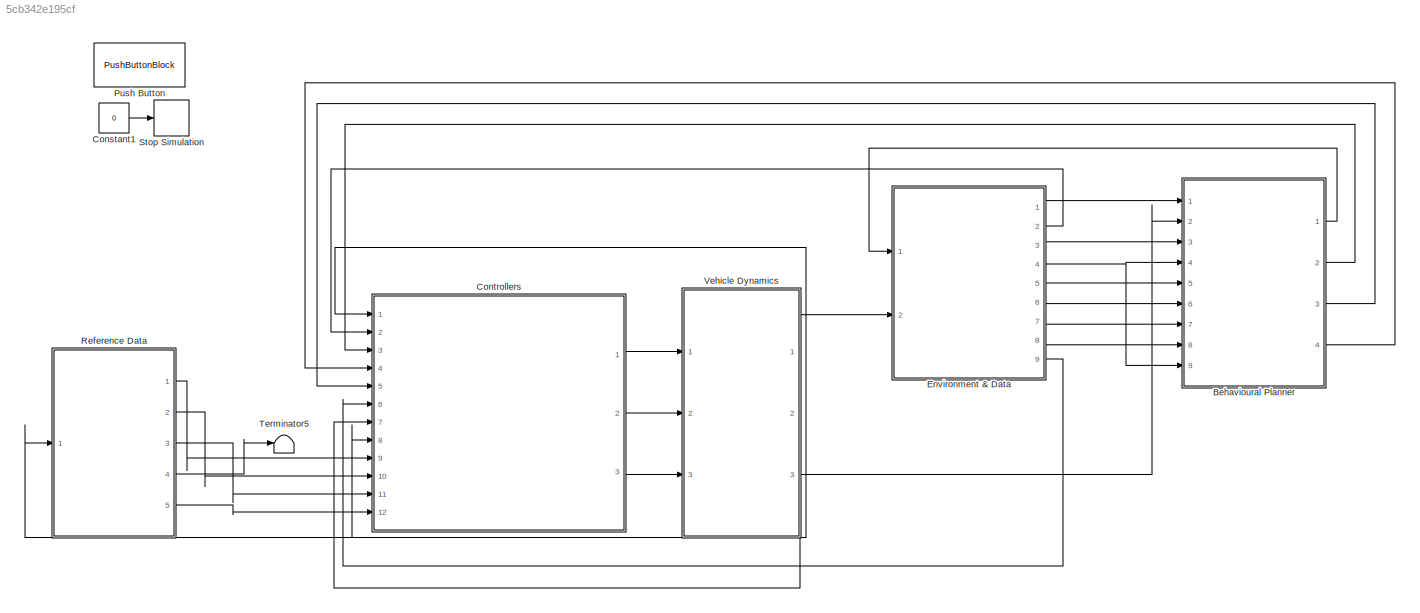
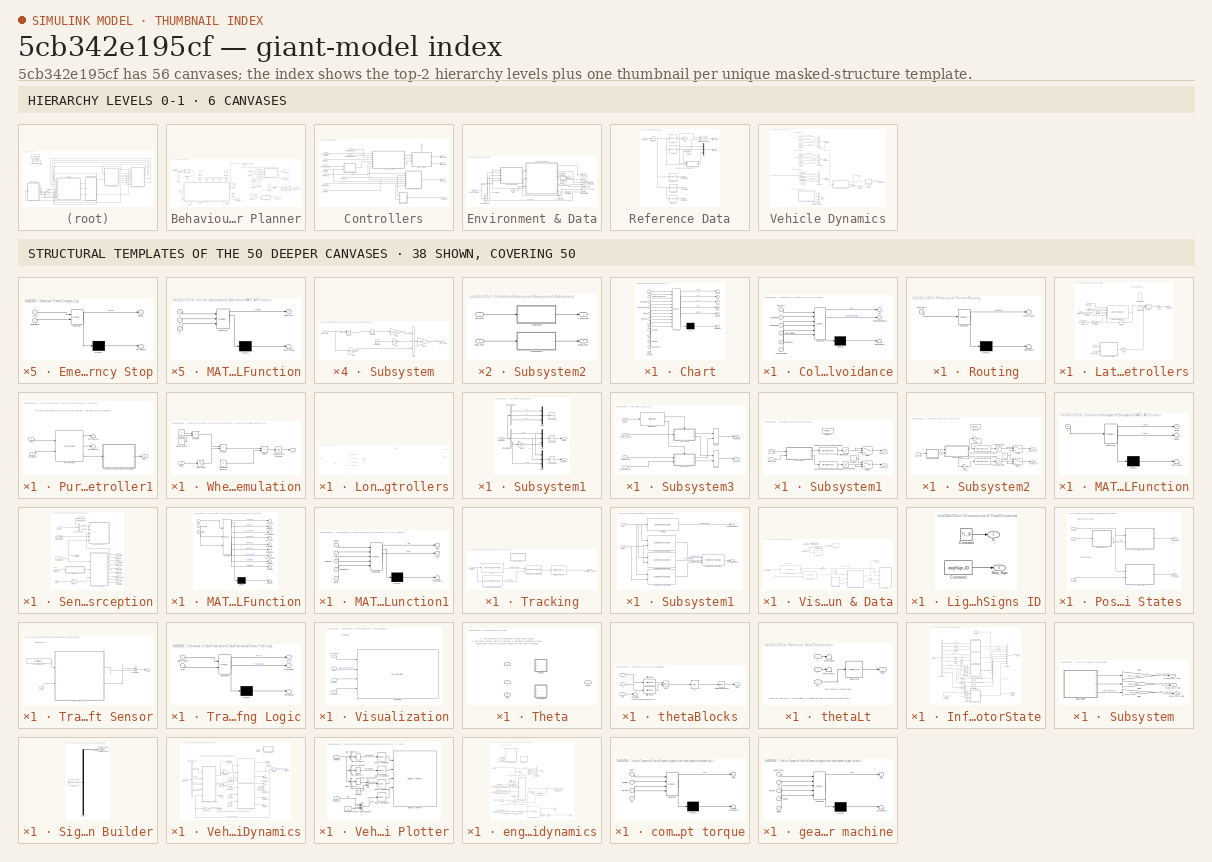
[diagram: thumbnail index - top-2 hierarchy levels (6 canvases) + 38 structural-template representatives of the remaining 50 canvases]
MODEL slx_5cb342e195cf
KIND model
CONFIG AbsTol = auto
CONFIG EnableMultiTasking = off
CONFIG FixedStep = auto
CONFIG MaxStep = auto
CONFIG MinStep = auto
CONFIG RelTol = 1e-3
CONFIG SampleTimeConstraint = Unconstrained
CONFIG SolverName = VariableStepAuto
CONFIG StartTime = 0.0
CONFIG StopTime = inf
WORKSPACE source: mxarray member
WORKSPACE firstWarning = 1
WORKSPACE originalScenarioChecksum = '114339432DE22364D47BB28FC96DC10C'
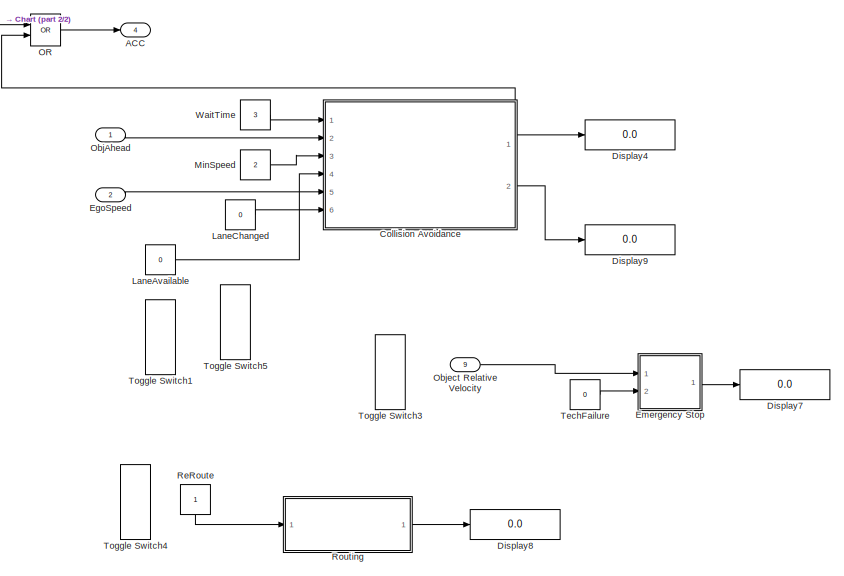
[diagram: Behavioural Planner - part 1/2, right side, full height]
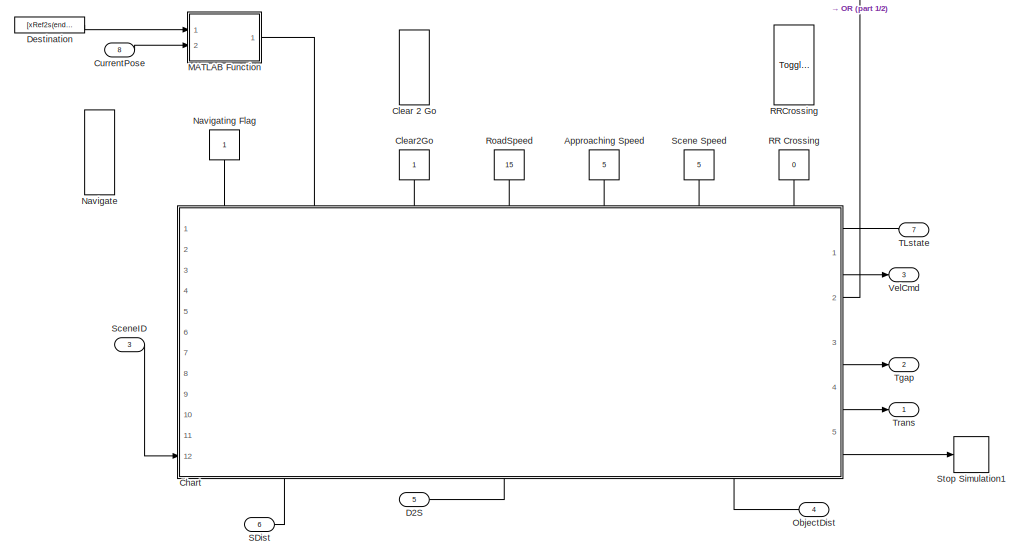
[diagram: Behavioural Planner - part 2/2, left side, full height]
BLOCK [SubSystem] Behavioural Planner
  Ports = [9, 4]
BLOCK [Outport] Behavioural Planner/ACC
  Port = 4
BLOCK [Constant] Behavioural Planner/Approaching Speed
  NameLocation = top
  Value = 5
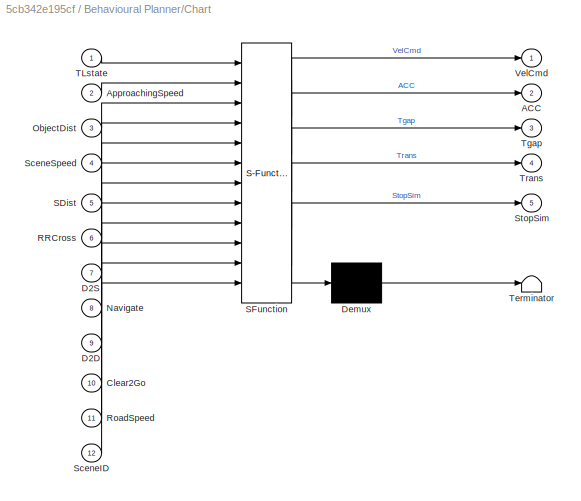
BLOCK [SubSystem] Behavioural Planner/Chart
  ErrorFcn = Stateflow.Translate.translate
  PermitHierarchicalResolution = ExplicitOnly
  PortSchema = {"entries":[{"content":{"sides":[{"content":{"connectorIds":["In12"]},"type":"ConnectorPlacement.EquallySpacedRectSide","uuid":"81aca70f-0947-49fb-b60a-be241e44193b"},{"content":{"connectorIds":["In1","Out1","Out2","Out3","Out4","Out5"],"side":"RIGHT"},"type":"ConnectorPlacement.EquallySpacedRectSide","uuid":"e7b9645e-3711-4964-ac9b-0199dd335e99"},{"content":{"connectorIds":["In8","In9","In10","In...<+479ch>
  Ports = [12, 5]
  SFBlockType = Chart
  TreatAsAtomicUnit = on
BLOCK [Demux] Behavioural Planner/Chart/ Demux 
  Outputs = 1
  Ports = [1, 1]
BLOCK [S-Function] Behavioural Planner/Chart/ SFunction 
  EnableBusSupport = on
  FunctionName = sf_sfun
  PortCounts = [12 6]
  Ports = [12, 6]
  SFcnIsStateOwnerBlock = off
  SFunctionDeploymentMode = off
  Tag = Stateflow S-Function 21
BLOCK [Terminator] Behavioural Planner/Chart/ Terminator 
BLOCK [Outport] Behavioural Planner/Chart/ACC
  Port = 2
BLOCK [Inport] Behavioural Planner/Chart/ApproachingSpeed
  Port = 2
BLOCK [Inport] Behavioural Planner/Chart/Clear2Go
  Port = 10
BLOCK [Inport] Behavioural Planner/Chart/D2D
  Port = 9
BLOCK [Inport] Behavioural Planner/Chart/D2S
  Port = 7
BLOCK [Inport] Behavioural Planner/Chart/Navigate
  Port = 8
BLOCK [Inport] Behavioural Planner/Chart/ObjectDist
  Port = 3
BLOCK [Inport] Behavioural Planner/Chart/RRCross
  Port = 6
BLOCK [Inport] Behavioural Planner/Chart/RoadSpeed
  Port = 11
BLOCK [Inport] Behavioural Planner/Chart/SDist
  Port = 5
BLOCK [Inport] Behavioural Planner/Chart/SceneID
  Port = 12
BLOCK [Inport] Behavioural Planner/Chart/SceneSpeed
  Port = 4
BLOCK [Outport] Behavioural Planner/Chart/StopSim
  Port = 5
BLOCK [Inport] Behavioural Planner/Chart/TLstate
BLOCK [Outport] Behavioural Planner/Chart/Tgap
  Port = 3
BLOCK [Outport] Behavioural Planner/Chart/Trans
  Port = 4
BLOCK [Outport] Behavioural Planner/Chart/VelCmd
BLOCK [ToggleSwitchBlock] Behavioural Planner/Clear 2 Go
BLOCK [Constant] Behavioural Planner/Clear2Go
  NameLocation = top
BLOCK [SubSystem] Behavioural Planner/Collision Avoidance
  ErrorFcn = Stateflow.Translate.translate
  PermitHierarchicalResolution = ExplicitOnly
  Ports = [6, 2]
  SFBlockType = Chart
  TreatAsAtomicUnit = on
BLOCK [Demux] Behavioural Planner/Collision Avoidance/ Demux 
  Outputs = 1
  Ports = [1, 1]
BLOCK [S-Function] Behavioural Planner/Collision Avoidance/ SFunction 
  EnableBusSupport = on
  FunctionName = sf_sfun
  PortCounts = [6 3]
  Ports = [6, 3]
  SFcnIsStateOwnerBlock = off
  SFunctionDeploymentMode = off
  Tag = Stateflow S-Function 9
BLOCK [Terminator] Behavioural Planner/Collision Avoidance/ Terminator 
BLOCK [Outport] Behavioural Planner/Collision Avoidance/ACC
BLOCK [Inport] Behavioural Planner/Collision Avoidance/EgoSpeed
  Port = 5
BLOCK [Inport] Behavioural Planner/Collision Avoidance/LaneAvailable
  Port = 4
BLOCK [Outport] Behavioural Planner/Collision Avoidance/LaneChangeCmd
  Port = 2
BLOCK [Inport] Behavioural Planner/Collision Avoidance/LaneChanged
  Port = 6
BLOCK [Inport] Behavioural Planner/Collision Avoidance/MinSpeed
  Port = 3
BLOCK [Inport] Behavioural Planner/Collision Avoidance/ObjAhead
  Port = 2
BLOCK [Inport] Behavioural Planner/Collision Avoidance/WaitTime
BLOCK [Inport] Behavioural Planner/CurrentPose
  Port = 8
BLOCK [Inport] Behavioural Planner/D2S
  Port = 5
BLOCK [Constant] Behavioural Planner/Destination
  Value = [xRef2s(end) yRef2s(end)]
BLOCK [Display] Behavioural Planner/Display4
  Decimation = 1
  Ports = [1]
BLOCK [Display] Behavioural Planner/Display7
  Decimation = 1
  Ports = [1]
BLOCK [Display] Behavioural Planner/Display8
  Decimation = 1
  Ports = [1]
BLOCK [Display] Behavioural Planner/Display9
  Decimation = 1
  Ports = [1]
BLOCK [Inport] Behavioural Planner/EgoSpeed
  Port = 2
BLOCK [SubSystem] Behavioural Planner/Emergency Stop
  ErrorFcn = Stateflow.Translate.translate
  PermitHierarchicalResolution = ExplicitOnly
  Ports = [2, 1]
  SFBlockType = Chart
  TreatAsAtomicUnit = on
BLOCK [Demux] Behavioural Planner/Emergency Stop/ Demux 
  Outputs = 1
  Ports = [1, 1]
BLOCK [S-Function] Behavioural Planner/Emergency Stop/ SFunction 
  EnableBusSupport = on
  FunctionName = sf_sfun
  PortCounts = [2 2]
  Ports = [2, 2]
  SFcnIsStateOwnerBlock = off
  SFunctionDeploymentMode = off
  Tag = Stateflow S-Function 8
BLOCK [Terminator] Behavioural Planner/Emergency Stop/ Terminator 
BLOCK [Inport] Behavioural Planner/Emergency Stop/D2O
BLOCK [Outport] Behavioural Planner/Emergency Stop/EStop
BLOCK [Inport] Behavioural Planner/Emergency Stop/TechFailure
  Port = 2
BLOCK [Constant] Behavioural Planner/LaneAvailable
  NameLocation = left
  Value = 0
BLOCK [Constant] Behavioural Planner/LaneChanged
  NameLocation = left
  Value = 0
BLOCK [SubSystem] Behavioural Planner/MATLAB Function
  ErrorFcn = Stateflow.Translate.translate
  PermitHierarchicalResolution = ExplicitOnly
  Ports = [2, 1]
  SFBlockType = MATLAB Function
  TreatAsAtomicUnit = on
BLOCK [Demux] Behavioural Planner/MATLAB Function/ Demux 
  Outputs = 1
  Ports = [1, 1]
BLOCK [S-Function] Behavioural Planner/MATLAB Function/ SFunction 
  EnableBusSupport = on
  FunctionName = sf_sfun
  PortCounts = [2 2]
  Ports = [2, 2]
  SFcnIsStateOwnerBlock = off
  SFunctionDeploymentMode = off
  Tag = Stateflow S-Function 13
BLOCK [Terminator] Behavioural Planner/MATLAB Function/ Terminator 
BLOCK [Inport] Behavioural Planner/MATLAB Function/CurrentPose
  Port = 2
BLOCK [Outport] Behavioural Planner/MATLAB Function/D2D
BLOCK [Inport] Behavioural Planner/MATLAB Function/Dest
BLOCK [Constant] Behavioural Planner/MinSpeed
  NameLocation = left
  Value = 2
BLOCK [ToggleSwitchBlock] Behavioural Planner/Navigate
BLOCK [Constant] Behavioural Planner/Navigating Flag
  NameLocation = left
BLOCK [Logic] Behavioural Planner/OR
  AllPortsSameDT = off
  IconShape = distinctive
  Operator = OR
  OutDataTypeStr = fixdt(1,16)
  Ports = [2, 1]
BLOCK [Inport] Behavioural Planner/ObjAhead
BLOCK [Inport] Behavioural Planner/Object Relative Velocity
  Port = 9
BLOCK [Inport] Behavioural Planner/ObjectDist
  Port = 4
BLOCK [Constant] Behavioural Planner/RR Crossing
  NameLocation = top
  Value = 0
BLOCK [ToggleSwitchBlock] Behavioural Planner/RRCrossing
BLOCK [Constant] Behavioural Planner/ReRoute
  NameLocation = top
BLOCK [Constant] Behavioural Planner/RoadSpeed
  NameLocation = top
  Value = 15
BLOCK [SubSystem] Behavioural Planner/Routing
  ErrorFcn = Stateflow.Translate.translate
  PermitHierarchicalResolution = ExplicitOnly
  Ports = [1, 1]
  SFBlockType = Chart
  TreatAsAtomicUnit = on
BLOCK [Demux] Behavioural Planner/Routing/ Demux 
  Outputs = 1
  Ports = [1, 1]
BLOCK [S-Function] Behavioural Planner/Routing/ SFunction 
  EnableBusSupport = on
  FunctionName = sf_sfun
  PortCounts = [1 2]
  Ports = [1, 2]
  SFcnIsStateOwnerBlock = off
  SFunctionDeploymentMode = off
  Tag = Stateflow S-Function 6
BLOCK [Terminator] Behavioural Planner/Routing/ Terminator 
BLOCK [Outport] Behavioural Planner/Routing/NewRoute
BLOCK [Inport] Behavioural Planner/Routing/ReRoute
BLOCK [Inport] Behavioural Planner/SDist
  Port = 6
BLOCK [Constant] Behavioural Planner/Scene Speed
  NameLocation = top
  Value = 5
BLOCK [Inport] Behavioural Planner/SceneID
  Port = 3
BLOCK [Stop] Behavioural Planner/Stop Simulation1
BLOCK [Inport] Behavioural Planner/TLstate
  Port = 7
BLOCK [Constant] Behavioural Planner/TechFailure
  NameLocation = left
  Value = 0
BLOCK [Outport] Behavioural Planner/Tgap
  Port = 2
BLOCK [ToggleSwitchBlock] Behavioural Planner/Toggle Switch1
BLOCK [ToggleSwitchBlock] Behavioural Planner/Toggle Switch3
BLOCK [ToggleSwitchBlock] Behavioural Planner/Toggle Switch4
BLOCK [ToggleSwitchBlock] Behavioural Planner/Toggle Switch5
BLOCK [Outport] Behavioural Planner/Trans
BLOCK [Outport] Behavioural Planner/VelCmd
  Port = 3
BLOCK [Constant] Behavioural Planner/WaitTime
  NameLocation = left
  Value = 3
BLOCK [Constant] Constant1
  Value = 0
BLOCK [SubSystem] Controllers
  Ports = [12, 3]
BLOCK [Inport] Controllers/ACC
  NameLocation = left
  Port = 4
BLOCK [Outport] Controllers/BrakeCm
  Port = 2
BLOCK [Inport] Controllers/CurrVelocity
  Port = 8
BLOCK [Inport] Controllers/Curvature
  Port = 11
BLOCK [Inport] Controllers/Direction
  Port = 10
BLOCK [SubSystem] Controllers/Lateral Controllers
  Ports = [7, 1]
BLOCK [Constant] Controllers/Lateral Controllers/Constant5
BLOCK [Inport] Controllers/Lateral Controllers/CurrPoses
  Port = 2
BLOCK [Inport] Controllers/Lateral Controllers/CurrVelocity
BLOCK [Inport] Controllers/Lateral Controllers/Curvature
  Port = 5
BLOCK [Inport] Controllers/Lateral Controllers/Direction
  Port = 4
BLOCK [From] Controllers/Lateral Controllers/From
  GotoTag = yawrate
  IconDisplay = Signal name
  TagVisibility = global
BLOCK [Gain] Controllers/Lateral Controllers/Gain
  Gain = 1/STEER_RATIO
BLOCK [Gain] Controllers/Lateral Controllers/Gain1
  Gain = 180/pi
BLOCK [Gain] Controllers/Lateral Controllers/Gain2
  Gain = 180/pi
BLOCK [Reference] Controllers/Lateral Controllers/Lateral Controller Stanley  REF=drivingvehiclecontroller/Lateral Controller Stanley
  Ports = [7, 1]
  SourceBlock = drivingvehiclecontroller/Lateral Controller Stanley
  SourceType = Lateral Controller Stanley
BLOCK [Inport] Controllers/Lateral Controllers/Pose
  Port = 7
BLOCK [SubSystem] Controllers/Lateral Controllers/Pure Pursuit Controller1
  Ports = [2, 1]
BLOCK [Inport] Controllers/Lateral Controllers/Pure Pursuit Controller1/Pose
BLOCK [Reference] Controllers/Lateral Controllers/Pure Pursuit Controller1/Pure Pursuit  REF=robotalgslib/Pure Pursuit
  Ports = [2, 3]
  SourceBlock = robotalgslib/Pure Pursuit
  SourceType = nav.slalgs.internal.PurePursuit
BLOCK [Terminator] Controllers/Lateral Controllers/Pure Pursuit Controller1/Terminator6
BLOCK [Terminator] Controllers/Lateral Controllers/Pure Pursuit Controller1/Terminator7
BLOCK [Inport] Controllers/Lateral Controllers/Pure Pursuit Controller1/Waypoints
  Port = 2
BLOCK [SubSystem] Controllers/Lateral Controllers/Pure Pursuit Controller1/Wheel Steering Angle Formulation
  Ports = [1, 1]
BLOCK [Outport] Controllers/Lateral Controllers/Pure Pursuit Controller1/Wheel Steering Angle Formulation/Al
BLOCK [Constant] Controllers/Lateral Controllers/Pure Pursuit Controller1/Wheel Steering Angle Formulation/Bicycle length
  Value = L
BLOCK [Constant] Controllers/Lateral Controllers/Pure Pursuit Controller1/Wheel Steering Angle Formulation/Constant
  Value = 2
BLOCK [Product] Controllers/Lateral Controllers/Pure Pursuit Controller1/Wheel Steering Angle Formulation/Divide
  Inputs = */
  Ports = [2, 1]
BLOCK [Constant] Controllers/Lateral Controllers/Pure Pursuit Controller1/Wheel Steering Angle Formulation/Lookahead distance
  Value = ld
BLOCK [Product] Controllers/Lateral Controllers/Pure Pursuit Controller1/Wheel Steering Angle Formulation/Product
  Ports = [2, 1]
BLOCK [Product] Controllers/Lateral Controllers/Pure Pursuit Controller1/Wheel Steering Angle Formulation/Product1
  Ports = [2, 1]
BLOCK [Sin] Controllers/Lateral Controllers/Pure Pursuit Controller1/Wheel Steering Angle Formulation/Sine Wave
  Ports = [1, 1]
  SampleTime = 0
  TimeSource = Use external signal
BLOCK [Trigonometry] Controllers/Lateral Controllers/Pure Pursuit Controller1/Wheel Steering Angle Formulation/Trigonometric Function
  Operator = atan
  Ports = [1, 1]
BLOCK [Inport] Controllers/Lateral Controllers/Pure Pursuit Controller1/Wheel Steering Angle Formulation/alpha
  NameLocation = top
BLOCK [Outport] Controllers/Lateral Controllers/Pure Pursuit Controller1/delta
BLOCK [Inport] Controllers/Lateral Controllers/RefPoses
  Port = 3
BLOCK [Switch] Controllers/Lateral Controllers/Switch
  Criteria = u2 > Threshold
  InputSameDT = off
  SaturateOnIntegerOverflow = off
BLOCK [ToggleSwitchBlock] Controllers/Lateral Controllers/Toggle Switch
BLOCK [UnitDelay] Controllers/Lateral Controllers/Unit Delay
  HasFrameUpgradeWarning = on
  NameLocation = top
  SampleTime = -1
BLOCK [Inport] Controllers/Lateral Controllers/Waypoints
  Port = 6
BLOCK [Outport] Controllers/Lateral Controllers/steerCmd
BLOCK [SubSystem] Controllers/Longitudinal Controllers
  Ports = [7, 3]
BLOCK [Outport] Controllers/Longitudinal Controllers/AccelCmd
  Port = 2
BLOCK [Reference] Controllers/Longitudinal Controllers/Adaptive Cruise Control System  REF=mpcadaslib/Adaptive Cruise Control System
  Ports = [5, 1]
  SourceBlock = mpcadaslib/Adaptive Cruise Control System
  SourceType = Adaptive cruise control (ACC) system
BLOCK [Constant] Controllers/Longitudinal Controllers/Constant3
  Value = 0
BLOCK [Inport] Controllers/Longitudinal Controllers/CurrVel
  Port = 6
BLOCK [Outport] Controllers/Longitudinal Controllers/DecelCmd
  Port = 3
BLOCK [Inport] Controllers/Longitudinal Controllers/Direction
  Port = 7
BLOCK [Reference] Controllers/Longitudinal Controllers/Longitudinal Controller Stanley  REF=drivingvehiclecontroller/Longitudinal Controller Stanley
  Ports = [4, 2]
  SourceBlock = drivingvehiclecontroller/Longitudinal Controller Stanley
  SourceType = Longitudinal Controller Stanley
BLOCK [Outport] Controllers/Longitudinal Controllers/Longitudinal acceleration
BLOCK [Inport] Controllers/Longitudinal Controllers/Longitudinal velocity
BLOCK [Inport] Controllers/Longitudinal Controllers/Relative distance
  Port = 3
BLOCK [Inport] Controllers/Longitudinal Controllers/Relative velocity
  Port = 2
BLOCK [Inport] Controllers/Longitudinal Controllers/Set velocity
  Port = 5
BLOCK [Inport] Controllers/Longitudinal Controllers/Time gap
  Port = 4
BLOCK [Inport] Controllers/Longitudinal velocity
BLOCK [SubSystem] Controllers/MATLAB Function2
  ErrorFcn = Stateflow.Translate.translate
  PermitHierarchicalResolution = ExplicitOnly
  Ports = [2, 1]
  SFBlockType = MATLAB Function
  TreatAsAtomicUnit = on
BLOCK [Demux] Controllers/MATLAB Function2/ Demux 
  Outputs = 1
  Ports = [1, 1]
BLOCK [S-Function] Controllers/MATLAB Function2/ SFunction 
  EnableBusSupport = on
  FunctionName = sf_sfun
  PortCounts = [2 2]
  Ports = [2, 2]
  SFcnIsStateOwnerBlock = off
  SFunctionDeploymentMode = off
  Tag = Stateflow S-Function 11
BLOCK [Terminator] Controllers/MATLAB Function2/ Terminator 
BLOCK [Outport] Controllers/MATLAB Function2/RefVelCmd
BLOCK [Inport] Controllers/MATLAB Function2/curvature
  Port = 2
BLOCK [Inport] Controllers/MATLAB Function2/v
BLOCK [Inport] Controllers/RefPoses
  Port = 9
BLOCK [Inport] Controllers/Relative distance
  Port = 6
BLOCK [Inport] Controllers/Relative velocity
  Port = 2
BLOCK [Outport] Controllers/SteerCmd
  Port = 3
BLOCK [SubSystem] Controllers/Subsystem1
  NameLocation = top
  Ports = [1, 2]
BLOCK [BusSelector] Controllers/Subsystem1/Bus Selector
  OutputSignals = InertFrm.Cg.Disp.X,InertFrm.Cg.Disp.Y,InertFrm.Cg.Ang.psi
  Ports = [1, 3]
BLOCK [BusSelector] Controllers/Subsystem1/Bus Selector1
  Commented = on
  OutputSignals = InertFrm.Cg.Disp.X,InertFrm.Cg.Disp.Y,InertFrm.Cg.Disp.Z
  Ports = [1, 3]
BLOCK [Gain] Controllers/Subsystem1/Gain1
  Gain = 180/pi
BLOCK [Mux] Controllers/Subsystem1/Mux
  DisplayOption = bar
  Inputs = 3
  Ports = [3, 1]
BLOCK [Mux] Controllers/Subsystem1/Mux1
  Commented = on
  DisplayOption = bar
  Inputs = 3
  Ports = [3, 1]
BLOCK [Mux] Controllers/Subsystem1/Mux2
  DisplayOption = bar
  Inputs = 3
  Ports = [3, 1]
BLOCK [Outport] Controllers/Subsystem1/PPpose
  Port = 2
BLOCK [Math] Controllers/Subsystem1/Transpose
  Operator = transpose
  Ports = [1, 1]
  SignedPower = on
BLOCK [Math] Controllers/Subsystem1/Transpose1
  Commented = on
  Operator = transpose
  Ports = [1, 1]
  SignedPower = on
BLOCK [Math] Controllers/Subsystem1/Transpose2
  Operator = transpose
  Ports = [1, 1]
  SignedPower = on
BLOCK [Inport] Controllers/Subsystem1/VehFdbk
BLOCK [Outport] Controllers/Subsystem1/pose
BLOCK [SubSystem] Controllers/Subsystem3
  PortSchema = {"entries":[{"content":{"sides":[{"content":{"connectorIds":["In1","In2","In3"]},"type":"ConnectorPlacement.EquallySpacedRectSide","uuid":"a23b1a10-3bcb-40a0-900c-c9a3f160b173"},{"content":{"connectorIds":["Out1","Out2"],"side":"RIGHT"},"type":"ConnectorPlacement.EquallySpacedRectSide","uuid":"88840b66-912f-4184-aeec-297642319416"},{"content":{"connectorIds":["In4"],"side":"TOP"},"type":"Connector...<+264ch>
  Ports = [4, 2]
BLOCK [Inport] Controllers/Subsystem3/ACCaccel_cmd
BLOCK [Outport] Controllers/Subsystem3/BrakeCm
  Port = 2
BLOCK [Inport] Controllers/Subsystem3/LCaccel_cmd
  Port = 2
BLOCK [Inport] Controllers/Subsystem3/LCdeccel_cmd
  Port = 3
BLOCK [Merge] Controllers/Subsystem3/Merge1
  Ports = [2, 1]
BLOCK [Merge] Controllers/Subsystem3/Merge2
  Ports = [2, 1]
BLOCK [Inport] Controllers/Subsystem3/Select
  Port = 4
BLOCK [SubSystem] Controllers/Subsystem3/Subsystem1
  Ports = [2, 2, 0, 0, 0, 0, 0, 1]
BLOCK [ActionPort] Controllers/Subsystem3/Subsystem1/Action Port
  ActionPortLabel = case [ 0 ]:
BLOCK [Saturate] Controllers/Subsystem3/Subsystem1/Brake Saturation
  LowerLimit = MIN_BRAKE
  UpperLimit = MAX_BRAKE
BLOCK [Constant] Controllers/Subsystem3/Subsystem1/Constant
  Value = 0
BLOCK [SubSystem] Controllers/Subsystem3/Subsystem1/Subsystem2
  Ports = [2, 2]
BLOCK [SubSystem] Controllers/Subsystem3/Subsystem1/Subsystem2/Subsystem
  Ports = [1, 1]
BLOCK [Constant] Controllers/Subsystem3/Subsystem1/Subsystem2/Subsystem/Constant1
  Value = MCAR
BLOCK [Gain] Controllers/Subsystem3/Subsystem1/Subsystem2/Subsystem/Gain
  Gain = 1.1*MCAR
BLOCK [Gain] Controllers/Subsystem3/Subsystem1/Subsystem2/Subsystem/Gain1
  Gain = 1.2*0.3*2/2
BLOCK [Gain] Controllers/Subsystem3/Subsystem1/Subsystem2/Subsystem/Gain2
  Gain = 0.7*9.81
BLOCK [Gain] Controllers/Subsystem3/Subsystem1/Subsystem2/Subsystem/Gain4
  Gain = R/(7.05*0.8)
BLOCK [Integrator] Controllers/Subsystem3/Subsystem1/Subsystem2/Subsystem/Integrator
  ExternalReset = falling
  Ports = [2, 1]
BLOCK [Math] Controllers/Subsystem3/Subsystem1/Subsystem2/Subsystem/Square
  Operator = square
  Ports = [1, 1]
BLOCK [Sum] Controllers/Subsystem3/Subsystem1/Subsystem2/Subsystem/Sum
  IconShape = rectangular
  Inputs = +++
  Ports = [3, 1]
BLOCK [Outport] Controllers/Subsystem3/Subsystem1/Subsystem2/Subsystem/T_eng_cmd
BLOCK [Inport] Controllers/Subsystem3/Subsystem1/Subsystem2/Subsystem/acc_cmd
BLOCK [SubSystem] Controllers/Subsystem3/Subsystem1/Subsystem2/Subsystem1
  Ports = [1, 1]
BLOCK [Constant] Controllers/Subsystem3/Subsystem1/Subsystem2/Subsystem1/Constant1
  Value = MCAR
BLOCK [Gain] Controllers/Subsystem3/Subsystem1/Subsystem2/Subsystem1/Gain
  Gain = 1.1*MCAR
BLOCK [Gain] Controllers/Subsystem3/Subsystem1/Subsystem2/Subsystem1/Gain1
  Gain = 1.2*0.3*2/2
BLOCK [Gain] Controllers/Subsystem3/Subsystem1/Subsystem2/Subsystem1/Gain2
  Gain = 0.7*9.81
BLOCK [Gain] Controllers/Subsystem3/Subsystem1/Subsystem2/Subsystem1/Gain4
  Gain = -R/(7.05*0.8)
BLOCK [Integrator] Controllers/Subsystem3/Subsystem1/Subsystem2/Subsystem1/Integrator
  ExternalReset = falling
  Ports = [2, 1]
BLOCK [Math] Controllers/Subsystem3/Subsystem1/Subsystem2/Subsystem1/Square
  Operator = square
  Ports = [1, 1]
BLOCK [Sum] Controllers/Subsystem3/Subsystem1/Subsystem2/Subsystem1/Sum
  IconShape = rectangular
  Inputs = +++
  Ports = [3, 1]
BLOCK [Outport] Controllers/Subsystem3/Subsystem1/Subsystem2/Subsystem1/T_brake_cmd
BLOCK [Inport] Controllers/Subsystem3/Subsystem1/Subsystem2/Subsystem1/decc_cmd
BLOCK [Outport] Controllers/Subsystem3/Subsystem1/Subsystem2/T_eng_cmd
BLOCK [Inport] Controllers/Subsystem3/Subsystem1/Subsystem2/acc_cmd
BLOCK [Outport] Controllers/Subsystem3/Subsystem1/Subsystem2/brake_cmd
  Port = 2
BLOCK [Inport] Controllers/Subsystem3/Subsystem1/Subsystem2/decc_cmd
  Port = 2
BLOCK [Switch] Controllers/Subsystem3/Subsystem1/Switch
  Criteria = u2 > Threshold
  InputSameDT = off
  SaturateOnIntegerOverflow = off
  Threshold = 500
BLOCK [Switch] Controllers/Subsystem3/Subsystem1/Switch1
  Criteria = u2 > Threshold
  InputSameDT = off
  SaturateOnIntegerOverflow = off
  Threshold = -500
BLOCK [Saturate] Controllers/Subsystem3/Subsystem1/Throttle Saturation
  LowerLimit = MIN_TORQUE
  UpperLimit = MAX_TORQUE
BLOCK [Inport] Controllers/Subsystem3/Subsystem1/acc_cmd
BLOCK [Outport] Controllers/Subsystem3/Subsystem1/brake_cm
  Port = 2
BLOCK [Inport] Controllers/Subsystem3/Subsystem1/decc_cmd
  Port = 2
BLOCK [DiscreteTransferFcn] Controllers/Subsystem3/Subsystem1/second-order low-pass brake model1
  Commented = through
  Denominator = NUMD_B
  InputPortMap = u0
  Numerator = DEND_B
  Ports = [1, 1]
  SampleTime = ts
BLOCK [DiscreteTransferFcn] Controllers/Subsystem3/Subsystem1/second-order low-pass torque model
  Commented = through
  Denominator = NUMD_T
  InputPortMap = u0
  Numerator = DEND_T
  Ports = [1, 1]
  SampleTime = ts
BLOCK [Outport] Controllers/Subsystem3/Subsystem1/torque_cm
BLOCK [SubSystem] Controllers/Subsystem3/Subsystem2
  Ports = [1, 2, 0, 0, 0, 0, 0, 1]
BLOCK [ActionPort] Controllers/Subsystem3/Subsystem2/Action Port
  ActionPortLabel = case [ 1 ]:
BLOCK [Saturate] Controllers/Subsystem3/Subsystem2/Brake Saturation
  LowerLimit = MIN_BRAKE
  UpperLimit = MAX_BRAKE
BLOCK [Constant] Controllers/Subsystem3/Subsystem2/Constant
  Value = 0
BLOCK [Gain] Controllers/Subsystem3/Subsystem2/Gain
  Commented = through
  Gain = 5
BLOCK [Gain] Controllers/Subsystem3/Subsystem2/Gain1
  Commented = through
  Gain = 5
BLOCK [SubSystem] Controllers/Subsystem3/Subsystem2/MATLAB Function
  ErrorFcn = Stateflow.Translate.translate
  PermitHierarchicalResolution = ExplicitOnly
  Ports = [1, 2]
  SFBlockType = MATLAB Function
  TreatAsAtomicUnit = on
BLOCK [Demux] Controllers/Subsystem3/Subsystem2/MATLAB Function/ Demux 
  Outputs = 1
  Ports = [1, 1]
BLOCK [S-Function] Controllers/Subsystem3/Subsystem2/MATLAB Function/ SFunction 
  EnableBusSupport = on
  FunctionName = sf_sfun
  PortCounts = [1 3]
  Ports = [1, 3]
  SFcnIsStateOwnerBlock = off
  SFunctionDeploymentMode = off
  Tag = Stateflow S-Function 10
BLOCK [Terminator] Controllers/Subsystem3/Subsystem2/MATLAB Function/ Terminator 
BLOCK [Outport] Controllers/Subsystem3/Subsystem2/MATLAB Function/accel
  VectorParamsAs1DForOutWhenUnconnected = off
BLOCK [Outport] Controllers/Subsystem3/Subsystem2/MATLAB Function/decel
  Port = 2
BLOCK [Inport] Controllers/Subsystem3/Subsystem2/MATLAB Function/u
BLOCK [SubSystem] Controllers/Subsystem3/Subsystem2/Subsystem2
  Ports = [2, 2]
BLOCK [SubSystem] Controllers/Subsystem3/Subsystem2/Subsystem2/Subsystem
  Ports = [1, 1]
BLOCK [Constant] Controllers/Subsystem3/Subsystem2/Subsystem2/Subsystem/Constant1
  Value = MCAR
BLOCK [Gain] Controllers/Subsystem3/Subsystem2/Subsystem2/Subsystem/Gain
  Gain = 1.1*MCAR
BLOCK [Gain] Controllers/Subsystem3/Subsystem2/Subsystem2/Subsystem/Gain1
  Gain = 1.2*0.3*2/2
BLOCK [Gain] Controllers/Subsystem3/Subsystem2/Subsystem2/Subsystem/Gain2
  Gain = 0.7*9.81
BLOCK [Gain] Controllers/Subsystem3/Subsystem2/Subsystem2/Subsystem/Gain4
  Gain = R/(7.05*0.8)
BLOCK [Integrator] Controllers/Subsystem3/Subsystem2/Subsystem2/Subsystem/Integrator
  ExternalReset = falling
  Ports = [2, 1]
BLOCK [Math] Controllers/Subsystem3/Subsystem2/Subsystem2/Subsystem/Square
  Operator = square
  Ports = [1, 1]
BLOCK [Sum] Controllers/Subsystem3/Subsystem2/Subsystem2/Subsystem/Sum
  IconShape = rectangular
  Inputs = +++
  Ports = [3, 1]
BLOCK [Outport] Controllers/Subsystem3/Subsystem2/Subsystem2/Subsystem/T_eng_cmd
BLOCK [Inport] Controllers/Subsystem3/Subsystem2/Subsystem2/Subsystem/acc_cmd
BLOCK [SubSystem] Controllers/Subsystem3/Subsystem2/Subsystem2/Subsystem1
  Ports = [1, 1]
BLOCK [Constant] Controllers/Subsystem3/Subsystem2/Subsystem2/Subsystem1/Constant1
  Value = MCAR
BLOCK [Gain] Controllers/Subsystem3/Subsystem2/Subsystem2/Subsystem1/Gain
  Gain = 1.1*MCAR
BLOCK [Gain] Controllers/Subsystem3/Subsystem2/Subsystem2/Subsystem1/Gain1
  Gain = 1.2*0.3*2/2
BLOCK [Gain] Controllers/Subsystem3/Subsystem2/Subsystem2/Subsystem1/Gain2
  Gain = 0.7*9.81
BLOCK [Gain] Controllers/Subsystem3/Subsystem2/Subsystem2/Subsystem1/Gain4
  Gain = -R/(7.05*0.8)
BLOCK [Integrator] Controllers/Subsystem3/Subsystem2/Subsystem2/Subsystem1/Integrator
  ExternalReset = falling
  Ports = [2, 1]
BLOCK [Math] Controllers/Subsystem3/Subsystem2/Subsystem2/Subsystem1/Square
  Operator = square
  Ports = [1, 1]
BLOCK [Sum] Controllers/Subsystem3/Subsystem2/Subsystem2/Subsystem1/Sum
  IconShape = rectangular
  Inputs = +++
  Ports = [3, 1]
BLOCK [Outport] Controllers/Subsystem3/Subsystem2/Subsystem2/Subsystem1/T_brake_cmd
BLOCK [Inport] Controllers/Subsystem3/Subsystem2/Subsystem2/Subsystem1/decc_cmd
BLOCK [Outport] Controllers/Subsystem3/Subsystem2/Subsystem2/T_eng_cmd
BLOCK [Inport] Controllers/Subsystem3/Subsystem2/Subsystem2/acc_cmd
BLOCK [Outport] Controllers/Subsystem3/Subsystem2/Subsystem2/brake_cmd
  Port = 2
BLOCK [Inport] Controllers/Subsystem3/Subsystem2/Subsystem2/decc_cmd
  Port = 2
BLOCK [Switch] Controllers/Subsystem3/Subsystem2/Switch
  Criteria = u2 > Threshold
  InputSameDT = off
  SaturateOnIntegerOverflow = off
  Threshold = 500
BLOCK [Switch] Controllers/Subsystem3/Subsystem2/Switch1
  Criteria = u2 > Threshold
  InputSameDT = off
  SaturateOnIntegerOverflow = off
  Threshold = -500
BLOCK [Saturate] Controllers/Subsystem3/Subsystem2/Throttle Saturation
  LowerLimit = MIN_TORQUE
  UpperLimit = MAX_TORQUE
BLOCK [Inport] Controllers/Subsystem3/Subsystem2/acc_cmd
BLOCK [Outport] Controllers/Subsystem3/Subsystem2/brake_cm
  Port = 2
BLOCK [DiscreteTransferFcn] Controllers/Subsystem3/Subsystem2/second-order low-pass brake model1
  Commented = through
  Denominator = NUMD_B
  InputPortMap = u0
  Numerator = DEND_B
  Ports = [1, 1]
  SampleTime = ts
BLOCK [DiscreteTransferFcn] Controllers/Subsystem3/Subsystem2/second-order low-pass torque model
  Commented = through
  Denominator = NUMD_T
  InputPortMap = u0
  Numerator = DEND_T
  Ports = [1, 1]
  SampleTime = ts
BLOCK [Outport] Controllers/Subsystem3/Subsystem2/torque_cm
BLOCK [SwitchCase] Controllers/Subsystem3/Switch Case1
  CaseConditions = {1, 0}
  Ports = [1, 2]
  ShowDefaultCase = off
BLOCK [Outport] Controllers/Subsystem3/TorgueCm
BLOCK [Inport] Controllers/Time gap
  Port = 3
BLOCK [Outport] Controllers/TorgueCm
BLOCK [Inport] Controllers/VehFdbk
  Port = 7
BLOCK [Inport] Controllers/Waypoints
  Port = 12
BLOCK [Inport] Controllers/velocity desired
  Port = 5
BLOCK [SubSystem] Environment & Data
  Ports = [2, 9]
BLOCK [BusSelector] Environment & Data/Bus Selector4
  OutputSignals = Velocity,Acceleration,Position
  Ports = [1, 3]
BLOCK [Outport] Environment & Data/EgoPosition
  Port = 8
BLOCK [Inport] Environment & Data/EgoVehStates
  Port = 2
BLOCK [Outport] Environment & Data/ObjAhead
BLOCK [Outport] Environment & Data/ObjRelVel
  Port = 2
BLOCK [Outport] Environment & Data/ObjectDist
  Port = 4
BLOCK [Outport] Environment & Data/RelDistmin
  Port = 9
BLOCK [Outport] Environment & Data/SDist
  Port = 6
BLOCK [Outport] Environment & Data/SceneDist
  Port = 5
BLOCK [Outport] Environment & Data/SceneID
  Port = 3
BLOCK [SubSystem] Environment & Data/Sensors & Perception
  Ports = [3, 10]
BLOCK [BusSelector] Environment & Data/Sensors & Perception/Bus Selector2
  OutputSignals = Position,Yaw
  Ports = [1, 2]
BLOCK [Constant] Environment & Data/Sensors & Perception/Constant1
  Value = 25
BLOCK [Inport] Environment & Data/Sensors & Perception/Detections
BLOCK [Inport] Environment & Data/Sensors & Perception/EgoInfo
  Port = 2
BLOCK [SubSystem] Environment & Data/Sensors & Perception/MATLAB Function
  ErrorFcn = Stateflow.Translate.translate
  PermitHierarchicalResolution = ExplicitOnly
  Ports = [3, 9]
  SFBlockType = MATLAB Function
  TreatAsAtomicUnit = on
BLOCK [Demux] Environment & Data/Sensors & Perception/MATLAB Function/ Demux 
  Outputs = 1
  Ports = [1, 1]
BLOCK [S-Function] Environment & Data/Sensors & Perception/MATLAB Function/ SFunction 
  EnableBusSupport = on
  FunctionName = sf_sfun
  PortCounts = [3 10]
  Ports = [3, 10]
  SFcnIsStateOwnerBlock = off
  SFunctionDeploymentMode = off
  Tag = Stateflow S-Function 4
BLOCK [Terminator] Environment & Data/Sensors & Perception/MATLAB Function/ Terminator 
BLOCK [Outport] Environment & Data/Sensors & Perception/MATLAB Function/ObjAhead
  Port = 6
BLOCK [Outport] Environment & Data/Sensors & Perception/MATLAB Function/ObjRelVel
  Port = 2
BLOCK [Outport] Environment & Data/Sensors & Perception/MATLAB Function/ObjectDist
  Port = 5
BLOCK [Outport] Environment & Data/Sensors & Perception/MATLAB Function/RelDistmin
  Port = 9
BLOCK [Outport] Environment & Data/Sensors & Perception/MATLAB Function/RelVelmin
  Port = 8
BLOCK [Inport] Environment & Data/Sensors & Perception/MATLAB Function/SDist
BLOCK [Outport] Environment & Data/Sensors & Perception/MATLAB Function/SceneAhead
  Port = 7
BLOCK [Outport] Environment & Data/Sensors & Perception/MATLAB Function/SceneDist
  Port = 4
BLOCK [Outport] Environment & Data/Sensors & Perception/MATLAB Function/SceneID
BLOCK [Outport] Environment & Data/Sensors & Perception/MATLAB Function/SceneRelVel
  Port = 3
BLOCK [Inport] Environment & Data/Sensors & Perception/MATLAB Function/Tracking
  Port = 2
BLOCK [Inport] Environment & Data/Sensors & Perception/MATLAB Function/Trans
  Port = 3
BLOCK [SubSystem] Environment & Data/Sensors & Perception/MATLAB Function1
  Commented = on
  ErrorFcn = Stateflow.Translate.translate
  PermitHierarchicalResolution = ExplicitOnly
  Ports = [5, 2]
  SFBlockType = MATLAB Function
  TreatAsAtomicUnit = on
BLOCK [Demux] Environment & Data/Sensors & Perception/MATLAB Function1/ Demux 
  Outputs = 1
  Ports = [1, 1]
BLOCK [S-Function] Environment & Data/Sensors & Perception/MATLAB Function1/ SFunction 
  EnableBusSupport = on
  FunctionName = sf_sfun
  PortCounts = [5 3]
  Ports = [5, 3]
  SFcnIsStateOwnerBlock = off
  SFunctionDeploymentMode = off
  Tag = Stateflow S-Function 7
BLOCK [Terminator] Environment & Data/Sensors & Perception/MATLAB Function1/ Terminator 
BLOCK [Outport] Environment & Data/Sensors & Perception/MATLAB Function1/D2S
  Port = 2
BLOCK [Inport] Environment & Data/Sensors & Perception/MATLAB Function1/EVpos
BLOCK [Outport] Environment & Data/Sensors & Perception/MATLAB Function1/SDir
BLOCK [Inport] Environment & Data/Sensors & Perception/MATLAB Function1/SDist
  Port = 5
BLOCK [Inport] Environment & Data/Sensors & Perception/MATLAB Function1/SceneID
  Port = 3
BLOCK [Inport] Environment & Data/Sensors & Perception/MATLAB Function1/SceneInfo
  Port = 4
BLOCK [Inport] Environment & Data/Sensors & Perception/MATLAB Function1/yaw
  Port = 2
BLOCK [Outport] Environment & Data/Sensors & Perception/ObjAhead
BLOCK [Outport] Environment & Data/Sensors & Perception/ObjRelVel
  Port = 4
BLOCK [Outport] Environment & Data/Sensors & Perception/ObjectDist
  Port = 6
BLOCK [Outport] Environment & Data/Sensors & Perception/ReVelmin
  Port = 9
BLOCK [Outport] Environment & Data/Sensors & Perception/RelDistmin
  Port = 10
BLOCK [Outport] Environment & Data/Sensors & Perception/SDist
  Port = 8
BLOCK [Constant] Environment & Data/Sensors & Perception/Scene Info
  Value = SceneInfo
  VectorParams1D = off
BLOCK [Outport] Environment & Data/Sensors & Perception/SceneAhead
  Port = 2
BLOCK [Outport] Environment & Data/Sensors & Perception/SceneDist
  Port = 7
BLOCK [Outport] Environment & Data/Sensors & Perception/SceneID
  Port = 3
BLOCK [Outport] Environment & Data/Sensors & Perception/SceneRelVel
  Port = 5
BLOCK [ToWorkspace] Environment & Data/Sensors & Perception/To Workspace
  FixptAsFi = on
  MaxDataPoints = inf
  Ports = [1]
  SampleTime = -1
  SaveFormat = Timeseries
  VariableName = EgoPose
BLOCK [SubSystem] Environment & Data/Sensors & Perception/Tracking
  Ports = [1, 1]
BLOCK [Reference] Environment & Data/Sensors & Perception/Tracking/Camera  REF=drivingscenarioandsensors/Vision Detection Generator
  Ports = [1, 1]
  SourceBlock = drivingscenarioandsensors/Vision Detection Generator
  SourceType = visionDetectionGenerator
BLOCK [Outport] Environment & Data/Sensors & Perception/Tracking/Confirmed_Tracks
  NameLocation = top
BLOCK [Reference] Environment & Data/Sensors & Perception/Tracking/Detection Concatenation  REF=trackingutilitieslib/Detection Concatenation
  Ports = [2, 1]
  SourceBlock = trackingutilitieslib/Detection Concatenation
  SourceType = matlabshared.tracking.internal.DetectionConcatenation
BLOCK [Inport] Environment & Data/Sensors & Perception/Tracking/Detections
BLOCK [Reference] Environment & Data/Sensors & Perception/Tracking/Multi-Object Tracker  REF=drivinglib/Multi-Object Tracker
  Ports = [1, 1]
  SourceBlock = drivinglib/Multi-Object Tracker
  SourceType = multiObjectTracker
BLOCK [Reference] Environment & Data/Sensors & Perception/Tracking/Radar Detection Generator  REF=drivingscenarioandsensors/Radar Detection Generator
  Ports = [1, 1]
  SourceBlock = drivingscenarioandsensors/Radar Detection Generator
  SourceType = radarDetectionGenerator
BLOCK [SubSystem] Environment & Data/Sensors & Perception/Tracking/Subsystem1
  Commented = on
  Ports = [2, 2]
BLOCK [Reference] Environment & Data/Sensors & Perception/Tracking/Subsystem1/Camera  REF=drivingscenarioandsensors/Vision Detection Generator
  Ports = [1, 1]
  SourceBlock = drivingscenarioandsensors/Vision Detection Generator
  SourceType = visionDetectionGenerator
BLOCK [Outport] Environment & Data/Sensors & Perception/Tracking/Subsystem1/Camera Detections
BLOCK [Reference] Environment & Data/Sensors & Perception/Tracking/Subsystem1/Detection Concatenation  REF=trackingutilitieslib/Detection Concatenation
  Ports = [3, 1]
  SourceBlock = trackingutilitieslib/Detection Concatenation
  SourceType = matlabshared.tracking.internal.DetectionConcatenation
BLOCK [Inport] Environment & Data/Sensors & Perception/Tracking/Subsystem1/EgoV
  Port = 2
BLOCK [Inport] Environment & Data/Sensors & Perception/Tracking/Subsystem1/In2
BLOCK [Reference] Environment & Data/Sensors & Perception/Tracking/Subsystem1/Lidar Point Cloud Generator  REF=drivingscenarioandsensors/Lidar Point Cloud Generator
  Ports = [2, 1]
  SourceBlock = drivingscenarioandsensors/Lidar Point Cloud Generator
  SourceType = lidarPointCloudGenerator
BLOCK [Reference] Environment & Data/Sensors & Perception/Tracking/Subsystem1/Lidar Point Cloud Generator1  REF=drivingscenarioandsensors/Lidar Point Cloud Generator
  Ports = [2, 1]
  SourceBlock = drivingscenarioandsensors/Lidar Point Cloud Generator
  SourceType = lidarPointCloudGenerator
BLOCK [Reference] Environment & Data/Sensors & Perception/Tracking/Subsystem1/Lidar Point Cloud Generator2  REF=drivingscenarioandsensors/Lidar Point Cloud Generator
  Ports = [2, 1]
  SourceBlock = drivingscenarioandsensors/Lidar Point Cloud Generator
  SourceType = lidarPointCloudGenerator
BLOCK [Outport] Environment & Data/Sensors & Perception/Tracking/Subsystem1/Radar detections
  Port = 2
BLOCK [Inport] Environment & Data/Sensors & Perception/Trans
  Port = 3
BLOCK [UnitDelay] Environment & Data/Sensors & Perception/Unit Delay1
  HasFrameUpgradeWarning = on
  SampleTime = -1
BLOCK [Outport] Environment & Data/TL_poses
  Port = 7
BLOCK [Terminator] Environment & Data/Terminator1
BLOCK [Terminator] Environment & Data/Terminator2
BLOCK [Terminator] Environment & Data/Terminator3
BLOCK [Inport] Environment & Data/Trans
BLOCK [SubSystem] Environment & Data/Visualisation & Data
  Ports = [5, 2]
BLOCK [Outport] Environment & Data/Visualisation & Data/Actors_VehCoords
BLOCK [BusSelector] Environment & Data/Visualisation & Data/Bus Selector
  OutputSignals = Actors
  Ports = [1, 1]
BLOCK [Display] Environment & Data/Visualisation & Data/Display
  Decimation = 1
  Ports = [1]
BLOCK [Display] Environment & Data/Visualisation & Data/Display3
  Decimation = 1
  Ports = [1]
BLOCK [Inport] Environment & Data/Visualisation & Data/Ego Acceleration
  Port = 3
BLOCK [Inport] Environment & Data/Visualisation & Data/Ego Position
  Port = 4
BLOCK [Inport] Environment & Data/Visualisation & Data/EgoInfo
  Port = 5
BLOCK [Inport] Environment & Data/Visualisation & Data/EgoVehStates
BLOCK [Inport] Environment & Data/Visualisation & Data/EgoVelocity
  Port = 2
BLOCK [SubSystem] Environment & Data/Visualisation & Data/Lights and Signs ID
  Ports = [0, 2]
BLOCK [Constant] Environment & Data/Visualisation & Data/Lights and Signs ID/Constant
  Value = TL_ID
BLOCK [Constant] Environment & Data/Visualisation & Data/Lights and Signs ID/Constant1
  Value = stopSign_ID
BLOCK [Outport] Environment & Data/Visualisation & Data/Lights and Signs ID/Stop_Sign
  Port = 2
BLOCK [Outport] Environment & Data/Visualisation & Data/Lights and Signs ID/TL
BLOCK [SubSystem] Environment & Data/Visualisation & Data/Positions and States 
  Ports = [3, 2]
BLOCK [Inport] Environment & Data/Visualisation & Data/Positions and States /<Actors>
BLOCK [SubSystem] Environment & Data/Visualisation & Data/Positions and States /MATLAB Function1
  ErrorFcn = Stateflow.Translate.translate
  PermitHierarchicalResolution = ExplicitOnly
  Ports = [2, 1]
  SFBlockType = MATLAB Function
  TreatAsAtomicUnit = on
BLOCK [Demux] Environment & Data/Visualisation & Data/Positions and States /MATLAB Function1/ Demux 
  Outputs = 1
  Ports = [1, 1]
BLOCK [S-Function] Environment & Data/Visualisation & Data/Positions and States /MATLAB Function1/ SFunction 
  EnableBusSupport = on
  FunctionName = sf_sfun
  PortCounts = [2 2]
  Ports = [2, 2]
  SFcnIsStateOwnerBlock = off
  SFunctionDeploymentMode = off
  Tag = Stateflow S-Function 2
BLOCK [Terminator] Environment & Data/Visualisation & Data/Positions and States /MATLAB Function1/ Terminator 
BLOCK [Inport] Environment & Data/Visualisation & Data/Positions and States /MATLAB Function1/Actors
BLOCK [Inport] Environment & Data/Visualisation & Data/Positions and States /MATLAB Function1/TL_State
  Port = 2
BLOCK [Outport] Environment & Data/Visualisation & Data/Positions and States /MATLAB Function1/TL_poses
BLOCK [SubSystem] Environment & Data/Visualisation & Data/Positions and States /MATLAB Function2
  ErrorFcn = Stateflow.Translate.translate
  PermitHierarchicalResolution = ExplicitOnly
  Ports = [2, 1]
  SFBlockType = MATLAB Function
  TreatAsAtomicUnit = on
BLOCK [Demux] Environment & Data/Visualisation & Data/Positions and States /MATLAB Function2/ Demux 
  Outputs = 1
  Ports = [1, 1]
BLOCK [S-Function] Environment & Data/Visualisation & Data/Positions and States /MATLAB Function2/ SFunction 
  EnableBusSupport = on
  FunctionName = sf_sfun
  PortCounts = [2 2]
  Ports = [2, 2]
  SFcnIsStateOwnerBlock = off
  SFunctionDeploymentMode = off
  Tag = Stateflow S-Function 1
BLOCK [Terminator] Environment & Data/Visualisation & Data/Positions and States /MATLAB Function2/ Terminator 
BLOCK [Inport] Environment & Data/Visualisation & Data/Positions and States /MATLAB Function2/Actors
BLOCK [Inport] Environment & Data/Visualisation & Data/Positions and States /MATLAB Function2/ss_State
  Port = 2
BLOCK [Outport] Environment & Data/Visualisation & Data/Positions and States /MATLAB Function2/ss_poses
BLOCK [Inport] Environment & Data/Visualisation & Data/Positions and States /TL_id
  Port = 2
BLOCK [Outport] Environment & Data/Visualisation & Data/Positions and States /TL_poses
BLOCK [SubSystem] Environment & Data/Visualisation & Data/Positions and States /Traffic Light Sensor
  Ports = [1, 1]
BLOCK [BusCreator] Environment & Data/Visualisation & Data/Positions and States /Traffic Light Sensor/Bus Creator
  DisplayOption = bar
  InheritFromInputs = on
  Inputs = 2
  Ports = [2, 1]
BLOCK [Constant] Environment & Data/Visualisation & Data/Positions and States /Traffic Light Sensor/LightConfiguration
  Value = TrafficLightSensorModeSelection
BLOCK [Outport] Environment & Data/Visualisation & Data/Positions and States /Traffic Light Sensor/TL_State
BLOCK [Inport] Environment & Data/Visualisation & Data/Positions and States /Traffic Light Sensor/TL_id
BLOCK [SubSystem] Environment & Data/Visualisation & Data/Positions and States /Traffic Light Sensor/Traffic Light Switching Logic
  ErrorFcn = Stateflow.Translate.translate
  PermitHierarchicalResolution = ExplicitOnly
  Ports = [2, 2]
  SFBlockType = Chart
  TreatAsAtomicUnit = on
BLOCK [Demux] Environment & Data/Visualisation & Data/Positions and States /Traffic Light Sensor/Traffic Light Switching Logic/ Demux 
  Outputs = 1
  Ports = [1, 1]
BLOCK [S-Function] Environment & Data/Visualisation & Data/Positions and States /Traffic Light Sensor/Traffic Light Switching Logic/ SFunction 
  EnableBusSupport = on
  FunctionName = sf_sfun
  PortCounts = [2 3]
  Ports = [2, 3]
  SFcnIsStateOwnerBlock = off
  SFunctionDeploymentMode = off
  Tag = Stateflow S-Function 3
BLOCK [Terminator] Environment & Data/Visualisation & Data/Positions and States /Traffic Light Sensor/Traffic Light Switching Logic/ Terminator 
BLOCK [Inport] Environment & Data/Visualisation & Data/Positions and States /Traffic Light Sensor/Traffic Light Switching Logic/LightConfig
BLOCK [Outport] Environment & Data/Visualisation & Data/Positions and States /Traffic Light Sensor/Traffic Light Switching Logic/TL_ID
BLOCK [Inport] Environment & Data/Visualisation & Data/Positions and States /Traffic Light Sensor/Traffic Light Switching Logic/TL_id
  Port = 2
BLOCK [Outport] Environment & Data/Visualisation & Data/Positions and States /Traffic Light Sensor/Traffic Light Switching Logic/trafficLight
  Port = 2
BLOCK [Inport] Environment & Data/Visualisation & Data/Positions and States /ss_State
  Port = 3
BLOCK [Outport] Environment & Data/Visualisation & Data/Positions and States /ss_poses
  Port = 2
BLOCK [Reference] Environment & Data/Visualisation & Data/Scenario Reader  REF=drivingscenarioandsensors/Scenario Reader
  Ports = [1, 1]
  SourceBlock = drivingscenarioandsensors/Scenario Reader
  SourceType = driving.scenario.internal.ScenarioReader
BLOCK [Outport] Environment & Data/Visualisation & Data/TL_poses
  Port = 2
BLOCK [ToWorkspace] Environment & Data/Visualisation & Data/To Workspace
  FixptAsFi = on
  MaxDataPoints = inf
  Ports = [1]
  SampleTime = -1
  Save2DSignal = 2-D array (concatenate along first dimension)
  VariableName = SimVel
BLOCK [ToWorkspace] Environment & Data/Visualisation & Data/To Workspace9
  FixptAsFi = on
  MaxDataPoints = inf
  Ports = [1]
  SampleTime = -1
  Save2DSignal = 2-D array (concatenate along first dimension)
  VariableName = SimPos
BLOCK [Reference] Environment & Data/Visualisation & Data/Vehicle To World  REF=drivingscenarioandsensors/Vehicle To World
  Ports = [2, 1]
  SourceBlock = drivingscenarioandsensors/Vehicle To World
  SourceType = driving.scenario.internal.VehicleToWorld
BLOCK [SubSystem] Environment & Data/Visualisation & Data/Visualization
  Ports = [4]
BLOCK [Inport] Environment & Data/Visualisation & Data/Visualization/Actors
  Port = 2
BLOCK [Inport] Environment & Data/Visualisation & Data/Visualization/EgoInfo
  Port = 3
BLOCK [Inport] Environment & Data/Visualisation & Data/Visualization/TL1_poses
BLOCK [MATLABSystem] Environment & Data/Visualisation & Data/Visualization/Visualization
  MaskDisplay = disp('TL_vis');\nport_label('input',1,'TL');\nport_label('input',2,'TargetPoses');\nport_label('input',3,'EgoInfo');\nport_label('input',4,'SS');
  MaskType = TL_vis
  Ports = [4]
  System = TL_vis
BLOCK [Inport] Environment & Data/Visualisation & Data/Visualization/ss1_poses
  Port = 4
BLOCK [PushButtonBlock] Push Button
  OffValue = 0.000000
BLOCK [SubSystem] Reference Data
  Ports = [1, 5]
  VariantControl = Stanley
BLOCK [Lookup_n-D] Reference Data/Curvature
  BreakpointsForDimension1 = gradbp
  InputPortMap = u0
  InternalRulePriority = Speed
  NumberOfTableDimensions = 1
  Ports = [1, 1]
  RndMeth = Simplest
  Table = curvature
BLOCK [Lookup_n-D] Reference Data/CurvatureAhd
  BreakpointsForDimension1 = gradbp
  Commented = on
  InputPortMap = u0
  InternalRulePriority = Speed
  NumberOfTableDimensions = 1
  Ports = [1, 1]
  RndMeth = Simplest
  Table = curvatureAhd
BLOCK [Outport] Reference Data/CurvatureO
  Port = 3
BLOCK [Outport] Reference Data/CurvatureO1
  Port = 4
BLOCK [Lookup_n-D] Reference Data/Direction
  BreakpointsForDimension1 = gradbp
  InputPortMap = u0
  InternalRulePriority = Speed
  NumberOfTableDimensions = 1
  Ports = [1, 1]
  RndMeth = Simplest
  Table = direction
BLOCK [Outport] Reference Data/DirectionO
  Port = 2
BLOCK [Goto] Reference Data/Goto
  GotoTag = xRef
  TagVisibility = global
BLOCK [Goto] Reference Data/Goto1
  GotoTag = yRef
  TagVisibility = global
BLOCK [Integrator] Reference Data/Integrator
  Ports = [1, 1]
BLOCK [Concatenate] Reference Data/Matrix Concatenate
  ConcatenateDimension = 2
  Mode = Multidimensional array
  Ports = [2, 1]
BLOCK [Mux] Reference Data/Mux
  DisplayOption = bar
  Inputs = 3
  Ports = [3, 1]
BLOCK [Outport] Reference Data/RefPose
BLOCK [SubSystem] Reference Data/Theta
  LabelModeActiveChoice = thetaLookUpTable
  Ports = [3, 1]
  Variant = on
  VariantControlMode = label
BLOCK [Inport] Reference Data/Theta/dis
  Port = 3
BLOCK [Outport] Reference Data/Theta/theta
BLOCK [SubSystem] Reference Data/Theta/thetaBlocks
  Ports = [3, 1]
  VariantControl = thetaSimulinkBlock
BLOCK [Trigonometry] Reference Data/Theta/thetaBlocks/Atan2
  ApproximationMethod = CORDIC
  Operator = atan2
  Ports = [2, 1]
BLOCK [Reference] Reference Data/Theta/thetaBlocks/Difference  REF=simulink/Discrete/Difference
  Ports = [1, 1]
  SourceBlock = simulink/Discrete/Difference
  SourceType = Difference
BLOCK [Reference] Reference Data/Theta/thetaBlocks/Difference1  REF=simulink/Discrete/Difference
  Ports = [1, 1]
  SourceBlock = simulink/Discrete/Difference
  SourceType = Difference
BLOCK [InitialCondition] Reference Data/Theta/thetaBlocks/IC
  Value = psi_o
BLOCK [Reference] Reference Data/Theta/thetaBlocks/Radians to Degrees  REF=simulink_extras/Transformations/Radians
to Degrees
  Ports = [1, 1]
  SourceBlock = simulink_extras/Transformations/Radians\nto Degrees
  SourceType = RadiansToDegrees
BLOCK [Terminator] Reference Data/Theta/thetaBlocks/Terminator
BLOCK [Inport] Reference Data/Theta/thetaBlocks/dis
  Port = 3
BLOCK [Outport] Reference Data/Theta/thetaBlocks/theta
BLOCK [Inport] Reference Data/Theta/thetaBlocks/x
  Port = 2
BLOCK [Inport] Reference Data/Theta/thetaBlocks/y
BLOCK [SubSystem] Reference Data/Theta/thetaLt
  Ports = [3, 1]
  VariantControl = thetaLookUpTable
BLOCK [Terminator] Reference Data/Theta/thetaLt/Terminator
BLOCK [Terminator] Reference Data/Theta/thetaLt/Terminator1
BLOCK [Lookup_n-D] Reference Data/Theta/thetaLt/Theta Ref
  BreakpointsForDimension1 = gradbp
  InputPortMap = u0
  InternalRulePriority = Speed
  NumberOfTableDimensions = 1
  Ports = [1, 1]
  RndMeth = Simplest
  Table = thetaRefs
BLOCK [Inport] Reference Data/Theta/thetaLt/dis
  Port = 3
BLOCK [Outport] Reference Data/Theta/thetaLt/theta
BLOCK [Inport] Reference Data/Theta/thetaLt/x
  Port = 2
BLOCK [Inport] Reference Data/Theta/thetaLt/y
BLOCK [Inport] Reference Data/Theta/x
  Port = 2
BLOCK [Inport] Reference Data/Theta/y
BLOCK [Inport] Reference Data/VelFdbk
BLOCK [Outport] Reference Data/WayPoints
  Port = 5
BLOCK [Lookup_n-D] Reference Data/X Ref
  BreakpointsForDimension1 = gradbp
  InputPortMap = u0
  InternalRulePriority = Speed
  NumberOfTableDimensions = 1
  Ports = [1, 1]
  RndMeth = Simplest
  Table = xRef2s
BLOCK [Lookup_n-D] Reference Data/Y Ref
  BreakpointsForDimension1 = gradbp
  InputPortMap = u0
  InternalRulePriority = Speed
  NumberOfTableDimensions = 1
  Ports = [1, 1]
  RndMeth = Simplest
  Table = yRef2s
BLOCK [Stop] Stop Simulation
BLOCK [Terminator] Terminator5
BLOCK [SubSystem] Vehicle Dynamics
  Ports = [3, 3]
BLOCK [BusCreator] Vehicle Dynamics/Bus Creator1
  DisplayOption = bar
  InheritFromInputs = on
  Inputs = 4
  Ports = [4, 1]
BLOCK [BusCreator] Vehicle Dynamics/Bus Creator2
  DisplayOption = bar
  InheritFromInputs = on
  Inputs = 4
  Ports = [4, 1]
BLOCK [BusCreator] Vehicle Dynamics/Bus Creator3
  DisplayOption = bar
  InheritFromInputs = on
  Inputs = 4
  Ports = [4, 1]
BLOCK [BusCreator] Vehicle Dynamics/Bus Creator4
  DisplayOption = bar
  InheritFromInputs = on
  Inputs = 4
  Ports = [4, 1]
BLOCK [Constant] Vehicle Dynamics/Constant
  Value = 120
BLOCK [Constant] Vehicle Dynamics/Constant1
  Value = 0
BLOCK [Constant] Vehicle Dynamics/Constant2
  Value = -1000
BLOCK [Constant] Vehicle Dynamics/Constant3
BLOCK [Constant] Vehicle Dynamics/Constant4
BLOCK [Constant] Vehicle Dynamics/Constant5
BLOCK [Constant] Vehicle Dynamics/Constant9
BLOCK [Outport] Vehicle Dynamics/EgoVehStates
BLOCK [FromWorkspace] Vehicle Dynamics/From Workspace
  SampleTime = ts
  VariableName = BRAKE_CMD
BLOCK [FromWorkspace] Vehicle Dynamics/From Workspace1
  SampleTime = ts
  VariableName = STEER_CMD
BLOCK [FromWorkspace] Vehicle Dynamics/From Workspace4
  SampleTime = ts
  VariableName = TORQUE_CMD
BLOCK [Outport] Vehicle Dynamics/Info
  Port = 2
BLOCK [SubSystem] Vehicle Dynamics/Info2ActorState
  Ports = [1, 1]
BLOCK [Outport] Vehicle Dynamics/Info2ActorState/ActorState
BLOCK [BusCreator] Vehicle Dynamics/Info2ActorState/Bus Creator
  DisplayOption = bar
  InheritFromInputs = on
  Inputs = ActorID,Position,Velocity,Acceleration,Roll,Pitch,Yaw,AngularVelocity
  NonVirtualBus = on
  OutDataTypeStr = Bus: BusActorState
  Ports = [8, 1]
BLOCK [BusSelector] Vehicle Dynamics/Info2ActorState/Bus Selector
  OutputSignals = InertFrm.Cg.Disp.X,InertFrm.Cg.Disp.Y,InertFrm.Cg.Disp.Z,InertFrm.Cg.Vel.Xdot,InertFrm.Cg.Vel.Ydot,InertFrm.Cg.Vel.Zdot,InertFrm.Cg.Ang.phi,InertFrm.Cg.Ang.theta,InertFrm.Cg.Ang.psi
  Ports = [1, 9]
BLOCK [Constant] Vehicle Dynamics/Info2ActorState/Constant
  SampleTime = 0.05
  Value = session.data.EgoCarId
BLOCK [Derivative] Vehicle Dynamics/Info2ActorState/Derivative
BLOCK [Derivative] Vehicle Dynamics/Info2ActorState/Derivative1
BLOCK [Derivative] Vehicle Dynamics/Info2ActorState/Derivative2
BLOCK [Derivative] Vehicle Dynamics/Info2ActorState/Derivative3
BLOCK [Derivative] Vehicle Dynamics/Info2ActorState/Derivative4
BLOCK [Derivative] Vehicle Dynamics/Info2ActorState/Derivative5
BLOCK [Gain] Vehicle Dynamics/Info2ActorState/Gain
  Gain = -180/pi
BLOCK [Gain] Vehicle Dynamics/Info2ActorState/Gain1
  Gain = -180/pi
BLOCK [Gain] Vehicle Dynamics/Info2ActorState/Gain2
  Gain = -180/pi
BLOCK [Gain] Vehicle Dynamics/Info2ActorState/Gain3
  Gain = -1
BLOCK [Gain] Vehicle Dynamics/Info2ActorState/Gain4
  Gain = -1
BLOCK [Gain] Vehicle Dynamics/Info2ActorState/Gain5
  Gain = -1
BLOCK [Gain] Vehicle Dynamics/Info2ActorState/Gain6
  Gain = -1
BLOCK [Inport] Vehicle Dynamics/Info2ActorState/Info
BLOCK [SubSystem] Vehicle Dynamics/Info2ActorState/MATLAB Function
  ErrorFcn = Stateflow.Translate.translate
  PermitHierarchicalResolution = ExplicitOnly
  Ports = [3, 1]
  SFBlockType = MATLAB Function
  SystemSampleTime = 0.05
  TreatAsAtomicUnit = on
BLOCK [Demux] Vehicle Dynamics/Info2ActorState/MATLAB Function/ Demux 
  Outputs = 1
  Ports = [1, 1]
BLOCK [S-Function] Vehicle Dynamics/Info2ActorState/MATLAB Function/ SFunction 
  EnableBusSupport = on
  FunctionName = sf_sfun
  PortCounts = [3 2]
  Ports = [3, 2]
  SFcnIsStateOwnerBlock = off
  SFunctionDeploymentMode = off
  Tag = Stateflow S-Function 5
BLOCK [Terminator] Vehicle Dynamics/Info2ActorState/MATLAB Function/ Terminator 
BLOCK [Outport] Vehicle Dynamics/Info2ActorState/MATLAB Function/Position
BLOCK [Inport] Vehicle Dynamics/Info2ActorState/MATLAB Function/X
BLOCK [Inport] Vehicle Dynamics/Info2ActorState/MATLAB Function/Y
  Port = 2
BLOCK [Inport] Vehicle Dynamics/Info2ActorState/MATLAB Function/Z
  Port = 3
BLOCK [SubSystem] Vehicle Dynamics/Info2ActorState/MATLAB Function1
  ErrorFcn = Stateflow.Translate.translate
  PermitHierarchicalResolution = ExplicitOnly
  Ports = [3, 1]
  SFBlockType = MATLAB Function
  SystemSampleTime = 0.05
  TreatAsAtomicUnit = on
BLOCK [Demux] Vehicle Dynamics/Info2ActorState/MATLAB Function1/ Demux 
  Outputs = 1
  Ports = [1, 1]
BLOCK [S-Function] Vehicle Dynamics/Info2ActorState/MATLAB Function1/ SFunction 
  EnableBusSupport = on
  FunctionName = sf_sfun
  PortCounts = [3 2]
  Ports = [3, 2]
  SFcnIsStateOwnerBlock = off
  SFunctionDeploymentMode = off
  Tag = Stateflow S-Function 12
BLOCK [Terminator] Vehicle Dynamics/Info2ActorState/MATLAB Function1/ Terminator 
BLOCK [Outport] Vehicle Dynamics/Info2ActorState/MATLAB Function1/Velocity
BLOCK [Inport] Vehicle Dynamics/Info2ActorState/MATLAB Function1/Xdot
BLOCK [Inport] Vehicle Dynamics/Info2ActorState/MATLAB Function1/Ydot
  Port = 2
BLOCK [Inport] Vehicle Dynamics/Info2ActorState/MATLAB Function1/Zdot
  Port = 3
BLOCK [SubSystem] Vehicle Dynamics/Info2ActorState/MATLAB Function2
  ErrorFcn = Stateflow.Translate.translate
  PermitHierarchicalResolution = ExplicitOnly
  Ports = [3, 1]
  SFBlockType = MATLAB Function
  SystemSampleTime = 0.05
  TreatAsAtomicUnit = on
BLOCK [Demux] Vehicle Dynamics/Info2ActorState/MATLAB Function2/ Demux 
  Outputs = 1
  Ports = [1, 1]
BLOCK [S-Function] Vehicle Dynamics/Info2ActorState/MATLAB Function2/ SFunction 
  EnableBusSupport = on
  FunctionName = sf_sfun
  PortCounts = [3 2]
  Ports = [3, 2]
  SFcnIsStateOwnerBlock = off
  SFunctionDeploymentMode = off
  Tag = Stateflow S-Function 15
BLOCK [Terminator] Vehicle Dynamics/Info2ActorState/MATLAB Function2/ Terminator 
BLOCK [Outport] Vehicle Dynamics/Info2ActorState/MATLAB Function2/Acceleration
BLOCK [Inport] Vehicle Dynamics/Info2ActorState/MATLAB Function2/aX
BLOCK [Inport] Vehicle Dynamics/Info2ActorState/MATLAB Function2/aY
  Port = 2
BLOCK [Inport] Vehicle Dynamics/Info2ActorState/MATLAB Function2/aZ
  Port = 3
BLOCK [SubSystem] Vehicle Dynamics/Info2ActorState/MATLAB Function3
  ErrorFcn = Stateflow.Translate.translate
  PermitHierarchicalResolution = ExplicitOnly
  Ports = [3, 1]
  SFBlockType = MATLAB Function
  SystemSampleTime = 0.05
  TreatAsAtomicUnit = on
BLOCK [Demux] Vehicle Dynamics/Info2ActorState/MATLAB Function3/ Demux 
  Outputs = 1
  Ports = [1, 1]
BLOCK [S-Function] Vehicle Dynamics/Info2ActorState/MATLAB Function3/ SFunction 
  EnableBusSupport = on
  FunctionName = sf_sfun
  PortCounts = [3 2]
  Ports = [3, 2]
  SFcnIsStateOwnerBlock = off
  SFunctionDeploymentMode = off
  Tag = Stateflow S-Function 16
BLOCK [Terminator] Vehicle Dynamics/Info2ActorState/MATLAB Function3/ Terminator 
BLOCK [Outport] Vehicle Dynamics/Info2ActorState/MATLAB Function3/AngularVelocity
BLOCK [Inport] Vehicle Dynamics/Info2ActorState/MATLAB Function3/phiDot
BLOCK [Inport] Vehicle Dynamics/Info2ActorState/MATLAB Function3/psiDot
  Port = 3
BLOCK [Inport] Vehicle Dynamics/Info2ActorState/MATLAB Function3/thetaDot
  Port = 2
BLOCK [RateTransition] Vehicle Dynamics/Info2ActorState/Rate Transition
  OutPortSampleTime = 0.05
BLOCK [RateTransition] Vehicle Dynamics/Info2ActorState/Rate Transition1
  OutPortSampleTime = 0.05
BLOCK [RateTransition] Vehicle Dynamics/Info2ActorState/Rate Transition2
  OutPortSampleTime = 0.05
BLOCK [Scope] Vehicle Dynamics/Info2ActorState/Scope
  Floating = off
  NumInputPorts = 1
  Ports = [1]
  ScopeSpecificationString = Simulink.scopes.TimeScopeBlockCfg('CurrentConfiguration', extmgr.ConfigurationSet(extmgr.Configuration('Core','General UI',true),extmgr.Configuration('Core','Source UI',true),extmgr.Configuration('Sources','WiredSimulink',true,'DataLoggingVariableName','ScopeData1'),extmgr.Configuration('Visuals','Time Domain',true,'SerializedDisplays',{struct('MinYLimReal','-1.00000','MaxYLimReal','1.00000','YLab...<+1416ch>
BLOCK [Scope] Vehicle Dynamics/Info2ActorState/Scope1
  Floating = off
  NumInputPorts = 1
  Ports = [1]
  ScopeSpecificationString = Simulink.scopes.TimeScopeBlockCfg('CurrentConfiguration', extmgr.ConfigurationSet(extmgr.Configuration('Core','General UI',true),extmgr.Configuration('Core','Source UI',true),extmgr.Configuration('Sources','WiredSimulink',true,'DataLoggingVariableName','ScopeData2'),extmgr.Configuration('Visuals','Time Domain',true),extmgr.Configuration('Tools','Plot Navigation',true),extmgr.Configuration('Tools',...<+40ch>
BLOCK [Saturate] Vehicle Dynamics/Saturation
  LowerLimit = 0.001
  UpperLimit = inf
BLOCK [SubSystem] Vehicle Dynamics/Subsystem
  Commented = on
  Ports = [0, 3]
BLOCK [Gain] Vehicle Dynamics/Subsystem/Gain
  Gain = MAX_TORQUE*0.1
BLOCK [Gain] Vehicle Dynamics/Subsystem/Gain1
  Gain = MIN_BRAKE*0.06
BLOCK [Gain] Vehicle Dynamics/Subsystem/Gain2
  Gain = MAX_STEER/4.5
BLOCK [SubSystem] Vehicle Dynamics/Subsystem/Signal Builder
  ClipboardFcn = sigbuilder_block('clipboard');
  CloseFcn = sigbuilder_block('close');
  ContinueFcn = sigbuilder_block('continue');
  CopyFcn = sigbuilder_block('copy');
  DeleteFcn = sigbuilder_block('delete');
  LoadFcn = sigbuilder_block('load');
  MaskHideContents = on
  ModelCloseFcn = sigbuilder_block('modelClose');
  NameChangeFcn = sigbuilder_block('namechange');
  OpenFcn = sigbuilder_block('open',[0 30 960 455.5 ]);
  PauseFcn = sigbuilder_block('pause');
  Ports = [0, 3]
  PreSaveFcn = sigbuilder_block('preSave');
  StartFcn = sigbuilder_block('start');
  StopFcn = sigbuilder_block('stop');
  Tag = STV Subsys
BLOCK [Demux] Vehicle Dynamics/Subsystem/Signal Builder/Demux
  DisplayOption = none
  Outputs = 3
  Ports = [1, 3]
  Tag = STV Demux
BLOCK [FromWorkspace] Vehicle Dynamics/Subsystem/Signal Builder/FromWs
  Tag = STV FromWs
  VariableName = tuvar
BLOCK [Outport] Vehicle Dynamics/Subsystem/Signal Builder/Normalized Brake
  Port = 2
  Tag = STV Outport
BLOCK [Outport] Vehicle Dynamics/Subsystem/Signal Builder/Normalized Steer
  Port = 3
  Tag = STV Outport
BLOCK [Outport] Vehicle Dynamics/Subsystem/Signal Builder/Normalized Torque
  Tag = STV Outport
BLOCK [Outport] Vehicle Dynamics/Subsystem/brake_cmd (Nm)
  Port = 2
BLOCK [Outport] Vehicle Dynamics/Subsystem/steer_cmd (deg)
  Port = 3
BLOCK [Outport] Vehicle Dynamics/Subsystem/torque_cmd (Nm)
BLOCK [Terminator] Vehicle Dynamics/Terminator
BLOCK [Terminator] Vehicle Dynamics/Terminator1
BLOCK [Terminator] Vehicle Dynamics/Terminator2
BLOCK [Terminator] Vehicle Dynamics/Terminator3
BLOCK [Terminator] Vehicle Dynamics/Terminator4
BLOCK [SubSystem] Vehicle Dynamics/VehicleDynamics
  Ports = [1, 3]
BLOCK [Inport] Vehicle Dynamics/VehicleDynamics/CAN_cmd
BLOCK [Outport] Vehicle Dynamics/VehicleDynamics/CAN_fbk
  Port = 2
  VectorParamsAs1DForOutWhenUnconnected = off
BLOCK [Constant] Vehicle Dynamics/VehicleDynamics/Constant1
  Value = X_o
BLOCK [Constant] Vehicle Dynamics/VehicleDynamics/Constant2
  Value = 0
BLOCK [Constant] Vehicle Dynamics/VehicleDynamics/Constant3
  Value = Y_o
BLOCK [Constant] Vehicle Dynamics/VehicleDynamics/Constant4
  Value = psi_o
BLOCK [Derivative] Vehicle Dynamics/VehicleDynamics/Derivative
BLOCK [FirstOrderHold] Vehicle Dynamics/VehicleDynamics/First Order Hold
  ErrorTolerance = inf
BLOCK [FirstOrderHold] Vehicle Dynamics/VehicleDynamics/First Order Hold1
  ErrorTolerance = inf
BLOCK [From] Vehicle Dynamics/VehicleDynamics/From1
  Commented = on
  GotoTag = delta
BLOCK [Goto] Vehicle Dynamics/VehicleDynamics/Goto
  GotoTag = omega
BLOCK [Goto] Vehicle Dynamics/VehicleDynamics/Goto1
  GotoTag = delta
BLOCK [Goto] Vehicle Dynamics/VehicleDynamics/Goto2
  GotoTag = yawrate
  TagVisibility = global
BLOCK [Outport] Vehicle Dynamics/VehicleDynamics/Info
BLOCK [Terminator] Vehicle Dynamics/VehicleDynamics/Terminator
BLOCK [Terminator] Vehicle Dynamics/VehicleDynamics/Terminator1
BLOCK [Terminator] Vehicle Dynamics/VehicleDynamics/Terminator2
BLOCK [Terminator] Vehicle Dynamics/VehicleDynamics/Terminator3
BLOCK [Terminator] Vehicle Dynamics/VehicleDynamics/Terminator4
BLOCK [Terminator] Vehicle Dynamics/VehicleDynamics/Terminator5
BLOCK [Gain] Vehicle Dynamics/VehicleDynamics/TireRadius
  Gain = R
BLOCK [Reference] Vehicle Dynamics/VehicleDynamics/Vehicle Body 3DOF Single Track  REF=autolibshared/Vehicle Body 3DOF Single Track
  Ports = [6, 7]
  SourceBlock = autolibshared/Vehicle Body 3DOF Single Track
  SourceType = Vehicle Body 3DOF Lateral
BLOCK [SubSystem] Vehicle Dynamics/VehicleDynamics/Vehicle XY Plotter
  Commented = on
  Ports = [2]
BLOCK [BusSelector] Vehicle Dynamics/VehicleDynamics/Vehicle XY Plotter/Bus Selector1
  OutputAsBus = on
  OutputSignals = InertFrm.Cg.Ang.phi,InertFrm.Cg.Ang.theta,InertFrm.Cg.Ang.psi
  Ports = [1, 1]
BLOCK [BusSelector] Vehicle Dynamics/VehicleDynamics/Vehicle XY Plotter/Bus Selector3
  OutputAsBus = on
  OutputSignals = InertFrm.Geom.Disp.X,InertFrm.Geom.Disp.Y,InertFrm.Geom.Disp.Z
  Ports = [1, 1]
BLOCK [BusSelector] Vehicle Dynamics/VehicleDynamics/Vehicle XY Plotter/Bus Selector4
  OutputAsBus = on
  OutputSignals = InertFrm.Cg.Vel.Xdot,InertFrm.Cg.Vel.Ydot
  Ports = [1, 1]
BLOCK [BusToVector] Vehicle Dynamics/VehicleDynamics/Vehicle XY Plotter/Bus to Vector
BLOCK [BusToVector] Vehicle Dynamics/VehicleDynamics/Vehicle XY Plotter/Bus to Vector1
BLOCK [BusToVector] Vehicle Dynamics/VehicleDynamics/Vehicle XY Plotter/Bus to Vector2
BLOCK [Constant] Vehicle Dynamics/VehicleDynamics/Vehicle XY Plotter/Constant4
  Value = 0
BLOCK [Ground] Vehicle Dynamics/VehicleDynamics/Vehicle XY Plotter/Ground
BLOCK [RateTransition] Vehicle Dynamics/VehicleDynamics/Vehicle XY Plotter/Rate Transition1
  OutPortSampleTime = pltDT
BLOCK [RateTransition] Vehicle Dynamics/VehicleDynamics/Vehicle XY Plotter/Rate Transition2
  OutPortSampleTime = pltDT
BLOCK [RateTransition] Vehicle Dynamics/VehicleDynamics/Vehicle XY Plotter/Rate Transition5
  OutPortSampleTime = pltDT
BLOCK [RateTransition] Vehicle Dynamics/VehicleDynamics/Vehicle XY Plotter/Rate Transition6
  OutPortSampleTime = pltDT
BLOCK [Concatenate] Vehicle Dynamics/VehicleDynamics/Vehicle XY Plotter/Vector Concatenate
  Ports = [2, 1]
BLOCK [Concatenate] Vehicle Dynamics/VehicleDynamics/Vehicle XY Plotter/Vector Concatenate1
  NumInputs = 4
  Ports = [4, 1]
BLOCK [Inport] Vehicle Dynamics/VehicleDynamics/Vehicle XY Plotter/VehFdbk
BLOCK [Inport] Vehicle Dynamics/VehicleDynamics/Vehicle XY Plotter/VehFdbk1
  Port = 2
BLOCK [Reference] Vehicle Dynamics/VehicleDynamics/Vehicle XY Plotter/Vehicle XY Plotter  REF=vehdynlibviscommon/Vehicle XY Plotter
  Ports = [5]
  SourceBlock = vehdynlibviscommon/Vehicle XY Plotter
  SourceType = Vehicle XY Plotter
BLOCK [SubSystem] Vehicle Dynamics/VehicleDynamics/engine-steer-brake dynamics
  Ports = [5, 3]
BLOCK [Sum] Vehicle Dynamics/VehicleDynamics/engine-steer-brake dynamics/Add
  IconShape = rectangular
  Ports = [2, 1]
BLOCK [Saturate] Vehicle Dynamics/VehicleDynamics/engine-steer-brake dynamics/Brake Saturation
  LowerLimit = MIN_BRAKE
  UpperLimit = MAX_BRAKE
BLOCK [Outport] Vehicle Dynamics/VehicleDynamics/engine-steer-brake dynamics/CAN_fbk
  Port = 3
  VectorParamsAs1DForOutWhenUnconnected = off
BLOCK [DeadZone] Vehicle Dynamics/VehicleDynamics/engine-steer-brake dynamics/Dead Zone
  LowerValue = -Vdead
  UpperValue = Vdead
BLOCK [DeadZone] Vehicle Dynamics/VehicleDynamics/engine-steer-brake dynamics/Dead Zone1
  LowerValue = -Tdead
  UpperValue = Tdead
BLOCK [Outport] Vehicle Dynamics/VehicleDynamics/engine-steer-brake dynamics/F
  Port = 2
  VectorParamsAs1DForOutWhenUnconnected = off
BLOCK [From] Vehicle Dynamics/VehicleDynamics/engine-steer-brake dynamics/From
  GotoTag = Tengine
BLOCK [From] Vehicle Dynamics/VehicleDynamics/engine-steer-brake dynamics/From1
  GotoTag = Tbrake
BLOCK [From] Vehicle Dynamics/VehicleDynamics/engine-steer-brake dynamics/From2
  GotoTag = Steer
BLOCK [Gain] Vehicle Dynamics/VehicleDynamics/engine-steer-brake dynamics/Gain2
  Gain = 0.5
BLOCK [SubSystem] Vehicle Dynamics/VehicleDynamics/engine-steer-brake dynamics/GearSelection1
  Commented = on
  ErrorFcn = Stateflow.Translate.translate
  PermitHierarchicalResolution = ExplicitOnly
  PortSchema = {"entries":[{"content":{"sides":[{"content":{"connectorIds":["In3","In2","In1"]},"type":"ConnectorPlacement.EquallySpacedRectSide","uuid":"465e5722-891f-481b-b3b6-2b8339e8e743"},{"content":{"connectorIds":["Out1"],"side":"RIGHT"},"type":"ConnectorPlacement.EquallySpacedRectSide","uuid":"28ef13cd-41d9-4e2e-8cd9-9157abf573a9"},{"content":{"connectorIds":[],"side":"TOP"},"type":"ConnectorPlacement.Eq...<+396ch>
  Ports = [3, 1]
  SFBlockType = Chart
  SystemSampleTime = ts
  TreatAsAtomicUnit = on
BLOCK [Demux] Vehicle Dynamics/VehicleDynamics/engine-steer-brake dynamics/GearSelection1/ Demux 
  Outputs = 1
  Ports = [1, 1]
BLOCK [S-Function] Vehicle Dynamics/VehicleDynamics/engine-steer-brake dynamics/GearSelection1/ SFunction 
  EnableBusSupport = on
  FunctionName = sf_sfun
  Parameters = DefaultGear,Tdead,Vdead
  PortCounts = [3 2]
  Ports = [3, 2]
  SFcnIsStateOwnerBlock = off
  SFunctionDeploymentMode = off
  Tag = Stateflow S-Function 17
BLOCK [Terminator] Vehicle Dynamics/VehicleDynamics/engine-steer-brake dynamics/GearSelection1/ Terminator 
BLOCK [Outport] Vehicle Dynamics/VehicleDynamics/engine-steer-brake dynamics/GearSelection1/CurrGear
BLOCK [Inport] Vehicle Dynamics/VehicleDynamics/engine-steer-brake dynamics/GearSelection1/Tbrake
BLOCK [Inport] Vehicle Dynamics/VehicleDynamics/engine-steer-brake dynamics/GearSelection1/gear_cmd
  Port = 3
BLOCK [Inport] Vehicle Dynamics/VehicleDynamics/engine-steer-brake dynamics/GearSelection1/vc
  Port = 2
BLOCK [Goto] Vehicle Dynamics/VehicleDynamics/engine-steer-brake dynamics/Goto
  GotoTag = Tengine
BLOCK [Goto] Vehicle Dynamics/VehicleDynamics/engine-steer-brake dynamics/Goto1
  GotoTag = Tbrake
BLOCK [Goto] Vehicle Dynamics/VehicleDynamics/engine-steer-brake dynamics/Goto2
  GotoTag = Steer
BLOCK [Reference] Vehicle Dynamics/VehicleDynamics/engine-steer-brake dynamics/Mapped Steering  REF=vehdynlibsteering/Mapped Steering
  Ports = [1, 3]
  SourceBlock = vehdynlibsteering/Mapped Steering
  SourceType = Mapped Steering
BLOCK [Scope] Vehicle Dynamics/VehicleDynamics/engine-steer-brake dynamics/Scope1
  Floating = off
  NumInputPorts = 2
  Ports = [2]
  ScopeSpecificationString = Simulink.scopes.TimeScopeBlockCfg('CurrentConfiguration', extmgr.ConfigurationSet(extmgr.Configuration('Core','General UI',true),extmgr.Configuration('Core','Source UI',true),extmgr.Configuration('Sources','WiredSimulink',true,'DataLoggingVariableName','ScopeData3'),extmgr.Configuration('Visuals','Time Domain',true,'SerializedDisplays',{struct('MinYLimReal','-4915.04892','MaxYLimReal','4915.04453'...<+2339ch>
BLOCK [Scope] Vehicle Dynamics/VehicleDynamics/engine-steer-brake dynamics/Scope2
  Floating = off
  NumInputPorts = 2
  Ports = [2]
  ScopeSpecificationString = Simulink.scopes.TimeScopeBlockCfg('CurrentConfiguration', extmgr.ConfigurationSet(extmgr.Configuration('Core','General UI',true),extmgr.Configuration('Core','Source UI',true),extmgr.Configuration('Sources','WiredSimulink',true,'DataLoggingVariableName','ScopeData2'),extmgr.Configuration('Visuals','Time Domain',true,'SerializedDisplays',{struct('MinYLimReal','-26.90714','MaxYLimReal','242.16425','Y...<+1681ch>
BLOCK [Scope] Vehicle Dynamics/VehicleDynamics/engine-steer-brake dynamics/Scope3
  Floating = off
  NumInputPorts = 1
  Ports = [1]
  ScopeSpecificationString = Simulink.scopes.TimeScopeBlockCfg('CurrentConfiguration', extmgr.ConfigurationSet(extmgr.Configuration('Core','General UI',true),extmgr.Configuration('Core','Source UI',true),extmgr.Configuration('Sources','WiredSimulink',true,'DataLoggingVariableName','ScopeData3'),extmgr.Configuration('Visuals','Time Domain',true,'SerializedDisplays',{struct('MinYLimReal','0.9','MaxYLimReal','1.1','YLabelReal','...<+1393ch>
BLOCK [Saturate] Vehicle Dynamics/VehicleDynamics/engine-steer-brake dynamics/Steering Saturation
  LowerLimit = MIN_STEER
  UpperLimit = MAX_STEER
BLOCK [Sum] Vehicle Dynamics/VehicleDynamics/engine-steer-brake dynamics/Sum
  Inputs = |+-
  Ports = [2, 1]
BLOCK [Terminator] Vehicle Dynamics/VehicleDynamics/engine-steer-brake dynamics/Terminator
BLOCK [Saturate] Vehicle Dynamics/VehicleDynamics/engine-steer-brake dynamics/Throttle Saturation
  LowerLimit = MIN_TORQUE
  UpperLimit = MAX_TORQUE
BLOCK [UnitDelay] Vehicle Dynamics/VehicleDynamics/engine-steer-brake dynamics/Unit Delay
  HasFrameUpgradeWarning = on
  SampleTime = -1
BLOCK [Inport] Vehicle Dynamics/VehicleDynamics/engine-steer-brake dynamics/brake_cmd (Nm)
  Port = 3
BLOCK [SubSystem] Vehicle Dynamics/VehicleDynamics/engine-steer-brake dynamics/compute net torque
  ErrorFcn = Stateflow.Translate.translate
  PermitHierarchicalResolution = ExplicitOnly
  Ports = [4, 1]
  SFBlockType = MATLAB Function
  SystemSampleTime = ts
  TreatAsAtomicUnit = on
BLOCK [Demux] Vehicle Dynamics/VehicleDynamics/engine-steer-brake dynamics/compute net torque/ Demux 
  Outputs = 1
  Ports = [1, 1]
BLOCK [S-Function] Vehicle Dynamics/VehicleDynamics/engine-steer-brake dynamics/compute net torque/ SFunction 
  EnableBusSupport = on
  FunctionName = sf_sfun
  PortCounts = [4 2]
  Ports = [4, 2]
  SFcnIsStateOwnerBlock = off
  SFunctionDeploymentMode = off
  Tag = Stateflow S-Function 18
BLOCK [Terminator] Vehicle Dynamics/VehicleDynamics/engine-steer-brake dynamics/compute net torque/ Terminator 
BLOCK [Inport] Vehicle Dynamics/VehicleDynamics/engine-steer-brake dynamics/compute net torque/Tbrake
  Port = 3
BLOCK [Inport] Vehicle Dynamics/VehicleDynamics/engine-steer-brake dynamics/compute net torque/Tengine
  Port = 2
BLOCK [Outport] Vehicle Dynamics/VehicleDynamics/engine-steer-brake dynamics/compute net torque/Tnet
  VectorParamsAs1DForOutWhenUnconnected = off
BLOCK [Inport] Vehicle Dynamics/VehicleDynamics/engine-steer-brake dynamics/compute net torque/gear
BLOCK [Inport] Vehicle Dynamics/VehicleDynamics/engine-steer-brake dynamics/compute net torque/vc
  Port = 4
BLOCK [Constant] Vehicle Dynamics/VehicleDynamics/engine-steer-brake dynamics/deadzone torque1
  Commented = on
  SampleTime = ts
  Value = Tdead
BLOCK [Constant] Vehicle Dynamics/VehicleDynamics/engine-steer-brake dynamics/deadzone velocity1
  Commented = on
  SampleTime = ts
  Value = Vdead
BLOCK [Gain] Vehicle Dynamics/VehicleDynamics/engine-steer-brake dynamics/deg-to-rad1
  Gain = pi/180
BLOCK [Outport] Vehicle Dynamics/VehicleDynamics/engine-steer-brake dynamics/delta (rad)
  VectorParamsAs1DForOutWhenUnconnected = off
BLOCK [SubSystem] Vehicle Dynamics/VehicleDynamics/engine-steer-brake dynamics/gear selection state machine
  Commented = on
  ErrorFcn = Stateflow.Translate.translate
  PermitHierarchicalResolution = ExplicitOnly
  Ports = [5, 1]
  SFBlockType = MATLAB Function
  SystemSampleTime = ts
  TreatAsAtomicUnit = on
BLOCK [Demux] Vehicle Dynamics/VehicleDynamics/engine-steer-brake dynamics/gear selection state machine/ Demux 
  Outputs = 1
  Ports = [1, 1]
BLOCK [S-Function] Vehicle Dynamics/VehicleDynamics/engine-steer-brake dynamics/gear selection state machine/ SFunction 
  EnableBusSupport = on
  FunctionName = sf_sfun
  PortCounts = [5 2]
  Ports = [5, 2]
  SFcnIsStateOwnerBlock = off
  SFunctionDeploymentMode = off
  Tag = Stateflow S-Function 19
BLOCK [Terminator] Vehicle Dynamics/VehicleDynamics/engine-steer-brake dynamics/gear selection state machine/ Terminator 
BLOCK [Inport] Vehicle Dynamics/VehicleDynamics/engine-steer-brake dynamics/gear selection state machine/Tbrake
  Port = 3
BLOCK [Inport] Vehicle Dynamics/VehicleDynamics/engine-steer-brake dynamics/gear selection state machine/Tdead
  Port = 4
BLOCK [Inport] Vehicle Dynamics/VehicleDynamics/engine-steer-brake dynamics/gear selection state machine/Vdead
  Port = 5
BLOCK [Outport] Vehicle Dynamics/VehicleDynamics/engine-steer-brake dynamics/gear selection state machine/gear
  VectorParamsAs1DForOutWhenUnconnected = off
BLOCK [Inport] Vehicle Dynamics/VehicleDynamics/engine-steer-brake dynamics/gear selection state machine/gear_cmd
BLOCK [Inport] Vehicle Dynamics/VehicleDynamics/engine-steer-brake dynamics/gear selection state machine/vc
  Port = 2
BLOCK [Inport] Vehicle Dynamics/VehicleDynamics/engine-steer-brake dynamics/gear_cmd
BLOCK [BusCreator] Vehicle Dynamics/VehicleDynamics/engine-steer-brake dynamics/output bus CAN feedback
  DisplayOption = bar
  InheritFromInputs = on
  Inputs = 4
  Ports = [4, 1]
BLOCK [Gain] Vehicle Dynamics/VehicleDynamics/engine-steer-brake dynamics/rolling resistance
  Gain = RRdamp
BLOCK [DiscreteTransferFcn] Vehicle Dynamics/VehicleDynamics/engine-steer-brake dynamics/second-order low-pass brake model
  Denominator = DEND_B
  InputPortMap = u0
  Numerator = NUMD_B
  Ports = [1, 1]
  SampleTime = ts
BLOCK [DiscreteTransferFcn] Vehicle Dynamics/VehicleDynamics/engine-steer-brake dynamics/second-order low-pass steering model
  Denominator = DEND_S
  InputPortMap = u0
  Numerator = NUMD_S
  Ports = [1, 1]
  SampleTime = ts
BLOCK [DiscreteTransferFcn] Vehicle Dynamics/VehicleDynamics/engine-steer-brake dynamics/second-order low-pass torque model
  Denominator = DEND_T
  InputPortMap = u0
  Numerator = NUMD_T
  Ports = [1, 1]
  SampleTime = ts
BLOCK [Inport] Vehicle Dynamics/VehicleDynamics/engine-steer-brake dynamics/steer_cmd (deg)
  Port = 4
BLOCK [Gain] Vehicle Dynamics/VehicleDynamics/engine-steer-brake dynamics/torque to acceleration conversion1
  Gain = 1/R
BLOCK [Inport] Vehicle Dynamics/VehicleDynamics/engine-steer-brake dynamics/torque_cmd (Nm)
  Port = 2
BLOCK [Inport] Vehicle Dynamics/VehicleDynamics/engine-steer-brake dynamics/vcar
  Port = 5
BLOCK [BusSelector] Vehicle Dynamics/VehicleDynamics/input bus to car
  OutputSignals = gear_cmd,torque_cmd (Nm),brake_cmd (Nm),steer_cmd (deg)
  Ports = [1, 4]
BLOCK [Outport] Vehicle Dynamics/VehicleDynamics/xdot
  Port = 3
BLOCK [Inport] Vehicle Dynamics/brake_cm
  Port = 2
BLOCK [Inport] Vehicle Dynamics/steer_cm
  Port = 3
BLOCK [Inport] Vehicle Dynamics/torque_cm
BLOCK [Outport] Vehicle Dynamics/xdot
  Port = 3
ANNOTATION Controllers/Lateral Controllers: include toggle logic
ANNOTATION Controllers/Lateral Controllers/Pure Pursuit Controller1: The subsystem implements a Pure Pursuit controller. The "Pure Pursuit" block calculates the target direction and the "Wheel Steering Angle Formulation" block calculates the wheel steering angle.
ANNOTATION Environment & Data/Sensors & Perception: Trans
ANNOTATION Environment & Data/Visualisation & Data: Load Scenario
ANNOTATION Environment & Data/Visualisation & Data: Traffic Lights and Stop Signs
ANNOTATION Environment & Data/Visualisation & Data/Positions and States : Stop Sign positon
ANNOTATION Environment & Data/Visualisation & Data/Positions and States : Traffic Light Position and State
ANNOTATION Environment & Data/Visualisation & Data/Positions and States /Traffic Light Sensor: Traffic Light Sensor
ANNOTATION Environment & Data/Visualisation & Data/Visualization: Visualization
ANNOTATION Reference Data: Select method to calculate theta
ANNOTATION Reference Data/Theta: 1) Add Subsystem or Model blocks as valid variant choices. 2) You cannot connect blocks at this level. At simulation, connectivity is automatically determined, based on the active variant and port name matching.
ANNOTATION Reference Data/Theta/thetaBlocks: theta calculated from Simulink blocks
ANNOTATION Reference Data/Theta/thetaLt: Check out the script "setUpModel" to understand how we have calculated theta
ANNOTATION Reference Data/Theta/thetaLt: theta based on lookup table
ANNOTATION Vehicle Dynamics: Commands from Signal Builder
ANNOTATION Vehicle Dynamics: Commands from workspace
ANNOTATION Vehicle Dynamics: Constant Commands
ANNOTATION Vehicle Dynamics: Controller Commands
ANNOTATION Vehicle Dynamics: The vehicle commands are selected from workspace variables set up in 'car params.m' for a lane change scenario
ANNOTATION Vehicle Dynamics/VehicleDynamics: can switch to dual track model for resolving forces at each wheel
ANNOTATION Vehicle Dynamics/VehicleDynamics: set a larger cornering stiffness than base. If smaller, the effect on turning can be seen
ANNOTATION Vehicle Dynamics/VehicleDynamics/engine-steer-brake dynamics: State Flow is another option for this
ANNOTATION Vehicle Dynamics/VehicleDynamics/engine-steer-brake dynamics: can extend this model to have different steering characteristics per wheel. This can be used in the dual track vehicle model.
ANNOTATION Vehicle Dynamics/VehicleDynamics/engine-steer-brake dynamics: could include more detailed powertrain using our libraries
LINE Behavioural Planner/Approaching Speed:1 -> Behavioural Planner/Chart:2
LINE Behavioural Planner/Chart:1 -> Behavioural Planner/VelCmd:1
LINE Behavioural Planner/Chart:2 -> Behavioural Planner/OR:1
LINE Behavioural Planner/Chart:3 -> Behavioural Planner/Tgap:1
LINE Behavioural Planner/Chart:4 -> Behavioural Planner/Trans:1
LINE Behavioural Planner/Chart:5 -> Behavioural Planner/Stop Simulation1:1
LINE Behavioural Planner/Clear2Go:1 -> Behavioural Planner/Chart:10
NET Behavioural Planner/Collision Avoidance:1 -> Behavioural Planner/Display4:1, Behavioural Planner/OR:2
LINE Behavioural Planner/Collision Avoidance:2 -> Behavioural Planner/Display9:1
LINE Behavioural Planner/CurrentPose:1 -> Behavioural Planner/MATLAB Function:2
LINE Behavioural Planner/D2S:1 -> Behavioural Planner/Chart:7
LINE Behavioural Planner/Destination:1 -> Behavioural Planner/MATLAB Function:1
LINE Behavioural Planner/EgoSpeed:1 -> Behavioural Planner/Collision Avoidance:5
LINE Behavioural Planner/Emergency Stop:1 -> Behavioural Planner/Display7:1
LINE Behavioural Planner/LaneAvailable:1 -> Behavioural Planner/Collision Avoidance:4
LINE Behavioural Planner/LaneChanged:1 -> Behavioural Planner/Collision Avoidance:6
LINE Behavioural Planner/MATLAB Function:1 -> Behavioural Planner/Chart:9
LINE Behavioural Planner/MinSpeed:1 -> Behavioural Planner/Collision Avoidance:3
LINE Behavioural Planner/Navigating Flag:1 -> Behavioural Planner/Chart:8
LINE Behavioural Planner/OR:1 -> Behavioural Planner/ACC:1
LINE Behavioural Planner/ObjAhead:1 -> Behavioural Planner/Collision Avoidance:2
LINE Behavioural Planner/Object Relative Velocity:1 -> Behavioural Planner/Emergency Stop:1
LINE Behavioural Planner/ObjectDist:1 -> Behavioural Planner/Chart:3
LINE Behavioural Planner/RR Crossing:1 -> Behavioural Planner/Chart:6
LINE Behavioural Planner/ReRoute:1 -> Behavioural Planner/Routing:1
LINE Behavioural Planner/RoadSpeed:1 -> Behavioural Planner/Chart:11
LINE Behavioural Planner/Routing:1 -> Behavioural Planner/Display8:1
LINE Behavioural Planner/SDist:1 -> Behavioural Planner/Chart:5
LINE Behavioural Planner/Scene Speed:1 -> Behavioural Planner/Chart:4
LINE Behavioural Planner/SceneID:1 -> Behavioural Planner/Chart:12
LINE Behavioural Planner/TLstate:1 -> Behavioural Planner/Chart:1
LINE Behavioural Planner/TechFailure:1 -> Behavioural Planner/Emergency Stop:2
LINE Behavioural Planner/WaitTime:1 -> Behavioural Planner/Collision Avoidance:1
LINE Behavioural Planner:1 -> Environment & Data:1
LINE Behavioural Planner:2 -> Controllers:3
LINE Behavioural Planner:3 -> Controllers:5
LINE Behavioural Planner:4 -> Controllers:4
LINE Constant1:1 -> Stop Simulation:1
LINE Controllers/ACC:1 -> Controllers/Subsystem3:4
NET Controllers/CurrVelocity:1 -> Controllers/Lateral Controllers:1, Controllers/Longitudinal Controllers:6
NET Controllers/Curvature:1 -> Controllers/Lateral Controllers:5, Controllers/MATLAB Function2:2
NET Controllers/Direction:1 -> Controllers/Lateral Controllers:4, Controllers/Longitudinal Controllers:7
LINE Controllers/Lateral Controllers/Constant5:1 -> Controllers/Lateral Controllers/Switch:2
LINE Controllers/Lateral Controllers/CurrPoses:1 -> Controllers/Lateral Controllers/Lateral Controller Stanley:2
LINE Controllers/Lateral Controllers/CurrVelocity:1 -> Controllers/Lateral Controllers/Lateral Controller Stanley:3
LINE Controllers/Lateral Controllers/Curvature:1 -> Controllers/Lateral Controllers/Lateral Controller Stanley:5
LINE Controllers/Lateral Controllers/Direction:1 -> Controllers/Lateral Controllers/Lateral Controller Stanley:4
LINE Controllers/Lateral Controllers/From:1 -> Controllers/Lateral Controllers/Gain1:1
LINE Controllers/Lateral Controllers/Gain1:1 -> Controllers/Lateral Controllers/Lateral Controller Stanley:6
LINE Controllers/Lateral Controllers/Gain2:1 -> Controllers/Lateral Controllers/Switch:3
LINE Controllers/Lateral Controllers/Gain:1 -> Controllers/Lateral Controllers/steerCmd:1
NET Controllers/Lateral Controllers/Lateral Controller Stanley:1 -> Controllers/Lateral Controllers/Switch:1, Controllers/Lateral Controllers/Unit Delay:1
LINE Controllers/Lateral Controllers/Pose:1 -> Controllers/Lateral Controllers/Pure Pursuit Controller1:1
LINE Controllers/Lateral Controllers/Pure Pursuit Controller1/Pose:1 -> Controllers/Lateral Controllers/Pure Pursuit Controller1/Pure Pursuit:1
LINE Controllers/Lateral Controllers/Pure Pursuit Controller1/Pure Pursuit:1 -> Controllers/Lateral Controllers/Pure Pursuit Controller1/Terminator6:1
LINE Controllers/Lateral Controllers/Pure Pursuit Controller1/Pure Pursuit:2 -> Controllers/Lateral Controllers/Pure Pursuit Controller1/Terminator7:1
LINE Controllers/Lateral Controllers/Pure Pursuit Controller1/Pure Pursuit:3 -> Controllers/Lateral Controllers/Pure Pursuit Controller1/Wheel Steering Angle Formulation:1
LINE Controllers/Lateral Controllers/Pure Pursuit Controller1/Waypoints:1 -> Controllers/Lateral Controllers/Pure Pursuit Controller1/Pure Pursuit:2
LINE Controllers/Lateral Controllers/Pure Pursuit Controller1/Wheel Steering Angle Formulation/Bicycle length:1 -> Controllers/Lateral Controllers/Pure Pursuit Controller1/Wheel Steering Angle Formulation/Product:2
LINE Controllers/Lateral Controllers/Pure Pursuit Controller1/Wheel Steering Angle Formulation/Constant:1 -> Controllers/Lateral Controllers/Pure Pursuit Controller1/Wheel Steering Angle Formulation/Product:1
LINE Controllers/Lateral Controllers/Pure Pursuit Controller1/Wheel Steering Angle Formulation/Divide:1 -> Controllers/Lateral Controllers/Pure Pursuit Controller1/Wheel Steering Angle Formulation/Trigonometric Function:1
LINE Controllers/Lateral Controllers/Pure Pursuit Controller1/Wheel Steering Angle Formulation/Lookahead distance:1 -> Controllers/Lateral Controllers/Pure Pursuit Controller1/Wheel Steering Angle Formulation/Divide:2
LINE Controllers/Lateral Controllers/Pure Pursuit Controller1/Wheel Steering Angle Formulation/Product1:1 -> Controllers/Lateral Controllers/Pure Pursuit Controller1/Wheel Steering Angle Formulation/Divide:1
LINE Controllers/Lateral Controllers/Pure Pursuit Controller1/Wheel Steering Angle Formulation/Product:1 -> Controllers/Lateral Controllers/Pure Pursuit Controller1/Wheel Steering Angle Formulation/Product1:1
LINE Controllers/Lateral Controllers/Pure Pursuit Controller1/Wheel Steering Angle Formulation/Sine Wave:1 -> Controllers/Lateral Controllers/Pure Pursuit Controller1/Wheel Steering Angle Formulation/Product1:2
LINE Controllers/Lateral Controllers/Pure Pursuit Controller1/Wheel Steering Angle Formulation/Trigonometric Function:1 -> Controllers/Lateral Controllers/Pure Pursuit Controller1/Wheel Steering Angle Formulation/Al:1
LINE Controllers/Lateral Controllers/Pure Pursuit Controller1/Wheel Steering Angle Formulation/alpha:1 -> Controllers/Lateral Controllers/Pure Pursuit Controller1/Wheel Steering Angle Formulation/Sine Wave:1
LINE Controllers/Lateral Controllers/Pure Pursuit Controller1/Wheel Steering Angle Formulation:1 -> Controllers/Lateral Controllers/Pure Pursuit Controller1/delta:1
LINE Controllers/Lateral Controllers/Pure Pursuit Controller1:1 -> Controllers/Lateral Controllers/Gain2:1
LINE Controllers/Lateral Controllers/RefPoses:1 -> Controllers/Lateral Controllers/Lateral Controller Stanley:1
LINE Controllers/Lateral Controllers/Switch:1 -> Controllers/Lateral Controllers/Gain:1
LINE Controllers/Lateral Controllers/Unit Delay:1 -> Controllers/Lateral Controllers/Lateral Controller Stanley:7
LINE Controllers/Lateral Controllers/Waypoints:1 -> Controllers/Lateral Controllers/Pure Pursuit Controller1:2
LINE Controllers/Lateral Controllers:1 -> Controllers/SteerCmd:1
LINE Controllers/Longitudinal Controllers/Adaptive Cruise Control System:1 -> Controllers/Longitudinal Controllers/Longitudinal acceleration:1
LINE Controllers/Longitudinal Controllers/Constant3:1 -> Controllers/Longitudinal Controllers/Longitudinal Controller Stanley:4
LINE Controllers/Longitudinal Controllers/CurrVel:1 -> Controllers/Longitudinal Controllers/Longitudinal Controller Stanley:2
LINE Controllers/Longitudinal Controllers/Direction:1 -> Controllers/Longitudinal Controllers/Longitudinal Controller Stanley:3
LINE Controllers/Longitudinal Controllers/Longitudinal Controller Stanley:1 -> Controllers/Longitudinal Controllers/AccelCmd:1
LINE Controllers/Longitudinal Controllers/Longitudinal Controller Stanley:2 -> Controllers/Longitudinal Controllers/DecelCmd:1
LINE Controllers/Longitudinal Controllers/Longitudinal velocity:1 -> Controllers/Longitudinal Controllers/Adaptive Cruise Control System:3
LINE Controllers/Longitudinal Controllers/Relative distance:1 -> Controllers/Longitudinal Controllers/Adaptive Cruise Control System:4
LINE Controllers/Longitudinal Controllers/Relative velocity:1 -> Controllers/Longitudinal Controllers/Adaptive Cruise Control System:5
NET Controllers/Longitudinal Controllers/Set velocity:1 -> Controllers/Longitudinal Controllers/Adaptive Cruise Control System:1, Controllers/Longitudinal Controllers/Longitudinal Controller Stanley:1
LINE Controllers/Longitudinal Controllers/Time gap:1 -> Controllers/Longitudinal Controllers/Adaptive Cruise Control System:2
LINE Controllers/Longitudinal Controllers:1 -> Controllers/Subsystem3:1
LINE Controllers/Longitudinal Controllers:2 -> Controllers/Subsystem3:2
LINE Controllers/Longitudinal Controllers:3 -> Controllers/Subsystem3:3
LINE Controllers/Longitudinal velocity:1 -> Controllers/Longitudinal Controllers:1
LINE Controllers/MATLAB Function2:1 -> Controllers/Longitudinal Controllers:5
LINE Controllers/RefPoses:1 -> Controllers/Lateral Controllers:3
LINE Controllers/Relative distance:1 -> Controllers/Longitudinal Controllers:3
LINE Controllers/Relative velocity:1 -> Controllers/Longitudinal Controllers:2
LINE Controllers/Subsystem1/Bus Selector1:1 -> Controllers/Subsystem1/Mux1:1
LINE Controllers/Subsystem1/Bus Selector1:2 -> Controllers/Subsystem1/Mux1:2
LINE Controllers/Subsystem1/Bus Selector1:3 -> Controllers/Subsystem1/Mux1:3
NET Controllers/Subsystem1/Bus Selector:1 -> Controllers/Subsystem1/Mux2:1, Controllers/Subsystem1/Mux:1
NET Controllers/Subsystem1/Bus Selector:2 -> Controllers/Subsystem1/Mux2:2, Controllers/Subsystem1/Mux:2
NET Controllers/Subsystem1/Bus Selector:3 -> Controllers/Subsystem1/Gain1:1, Controllers/Subsystem1/Mux2:3
LINE Controllers/Subsystem1/Gain1:1 -> Controllers/Subsystem1/Mux:3
LINE Controllers/Subsystem1/Mux1:1 -> Controllers/Subsystem1/Transpose1:1
LINE Controllers/Subsystem1/Mux2:1 -> Controllers/Subsystem1/Transpose2:1
LINE Controllers/Subsystem1/Mux:1 -> Controllers/Subsystem1/Transpose:1
LINE Controllers/Subsystem1/Transpose2:1 -> Controllers/Subsystem1/PPpose:1
LINE Controllers/Subsystem1/Transpose:1 -> Controllers/Subsystem1/pose:1
NET Controllers/Subsystem1/VehFdbk:1 -> Controllers/Subsystem1/Bus Selector1:1, Controllers/Subsystem1/Bus Selector:1
LINE Controllers/Subsystem1:1 -> Controllers/Lateral Controllers:2
LINE Controllers/Subsystem1:2 -> Controllers/Lateral Controllers:7
LINE Controllers/Subsystem3/ACCaccel_cmd:1 -> Controllers/Subsystem3/Subsystem2:1
LINE Controllers/Subsystem3/LCaccel_cmd:1 -> Controllers/Subsystem3/Subsystem1:1
LINE Controllers/Subsystem3/LCdeccel_cmd:1 -> Controllers/Subsystem3/Subsystem1:2
LINE Controllers/Subsystem3/Merge1:1 -> Controllers/Subsystem3/TorgueCm:1
LINE Controllers/Subsystem3/Merge2:1 -> Controllers/Subsystem3/BrakeCm:1
LINE Controllers/Subsystem3/Select:1 -> Controllers/Subsystem3/Switch Case1:1
NET Controllers/Subsystem3/Subsystem1/Brake Saturation:1 -> Controllers/Subsystem3/Subsystem1/Switch1:2, Controllers/Subsystem3/Subsystem1/Switch1:3
NET Controllers/Subsystem3/Subsystem1/Constant:1 -> Controllers/Subsystem3/Subsystem1/Switch1:1, Controllers/Subsystem3/Subsystem1/Switch:3
LINE Controllers/Subsystem3/Subsystem1/Subsystem2/Subsystem/Constant1:1 -> Controllers/Subsystem3/Subsystem1/Subsystem2/Subsystem/Gain2:1
LINE Controllers/Subsystem3/Subsystem1/Subsystem2/Subsystem/Gain1:1 -> Controllers/Subsystem3/Subsystem1/Subsystem2/Subsystem/Sum:1
LINE Controllers/Subsystem3/Subsystem1/Subsystem2/Subsystem/Gain2:1 -> Controllers/Subsystem3/Subsystem1/Subsystem2/Subsystem/Sum:2
LINE Controllers/Subsystem3/Subsystem1/Subsystem2/Subsystem/Gain4:1 -> Controllers/Subsystem3/Subsystem1/Subsystem2/Subsystem/T_eng_cmd:1
LINE Controllers/Subsystem3/Subsystem1/Subsystem2/Subsystem/Gain:1 -> Controllers/Subsystem3/Subsystem1/Subsystem2/Subsystem/Sum:3
LINE Controllers/Subsystem3/Subsystem1/Subsystem2/Subsystem/Integrator:1 -> Controllers/Subsystem3/Subsystem1/Subsystem2/Subsystem/Square:1
LINE Controllers/Subsystem3/Subsystem1/Subsystem2/Subsystem/Square:1 -> Controllers/Subsystem3/Subsystem1/Subsystem2/Subsystem/Gain1:1
LINE Controllers/Subsystem3/Subsystem1/Subsystem2/Subsystem/Sum:1 -> Controllers/Subsystem3/Subsystem1/Subsystem2/Subsystem/Gain4:1
NET Controllers/Subsystem3/Subsystem1/Subsystem2/Subsystem/acc_cmd:1 -> Controllers/Subsystem3/Subsystem1/Subsystem2/Subsystem/Gain:1, Controllers/Subsystem3/Subsystem1/Subsystem2/Subsystem/Integrator:1, Controllers/Subsystem3/Subsystem1/Subsystem2/Subsystem/Integrator:2
LINE Controllers/Subsystem3/Subsystem1/Subsystem2/Subsystem1/Constant1:1 -> Controllers/Subsystem3/Subsystem1/Subsystem2/Subsystem1/Gain2:1
LINE Controllers/Subsystem3/Subsystem1/Subsystem2/Subsystem1/Gain1:1 -> Controllers/Subsystem3/Subsystem1/Subsystem2/Subsystem1/Sum:1
LINE Controllers/Subsystem3/Subsystem1/Subsystem2/Subsystem1/Gain2:1 -> Controllers/Subsystem3/Subsystem1/Subsystem2/Subsystem1/Sum:2
LINE Controllers/Subsystem3/Subsystem1/Subsystem2/Subsystem1/Gain4:1 -> Controllers/Subsystem3/Subsystem1/Subsystem2/Subsystem1/T_brake_cmd:1
LINE Controllers/Subsystem3/Subsystem1/Subsystem2/Subsystem1/Gain:1 -> Controllers/Subsystem3/Subsystem1/Subsystem2/Subsystem1/Sum:3
LINE Controllers/Subsystem3/Subsystem1/Subsystem2/Subsystem1/Integrator:1 -> Controllers/Subsystem3/Subsystem1/Subsystem2/Subsystem1/Square:1
LINE Controllers/Subsystem3/Subsystem1/Subsystem2/Subsystem1/Square:1 -> Controllers/Subsystem3/Subsystem1/Subsystem2/Subsystem1/Gain1:1
LINE Controllers/Subsystem3/Subsystem1/Subsystem2/Subsystem1/Sum:1 -> Controllers/Subsystem3/Subsystem1/Subsystem2/Subsystem1/Gain4:1
NET Controllers/Subsystem3/Subsystem1/Subsystem2/Subsystem1/decc_cmd:1 -> Controllers/Subsystem3/Subsystem1/Subsystem2/Subsystem1/Gain:1, Controllers/Subsystem3/Subsystem1/Subsystem2/Subsystem1/Integrator:1, Controllers/Subsystem3/Subsystem1/Subsystem2/Subsystem1/Integrator:2
LINE Controllers/Subsystem3/Subsystem1/Subsystem2/Subsystem1:1 -> Controllers/Subsystem3/Subsystem1/Subsystem2/brake_cmd:1
LINE Controllers/Subsystem3/Subsystem1/Subsystem2/Subsystem:1 -> Controllers/Subsystem3/Subsystem1/Subsystem2/T_eng_cmd:1
LINE Controllers/Subsystem3/Subsystem1/Subsystem2/acc_cmd:1 -> Controllers/Subsystem3/Subsystem1/Subsystem2/Subsystem:1
LINE Controllers/Subsystem3/Subsystem1/Subsystem2/decc_cmd:1 -> Controllers/Subsystem3/Subsystem1/Subsystem2/Subsystem1:1
LINE Controllers/Subsystem3/Subsystem1/Subsystem2:1 -> Controllers/Subsystem3/Subsystem1/second-order low-pass torque model:1
LINE Controllers/Subsystem3/Subsystem1/Subsystem2:2 -> Controllers/Subsystem3/Subsystem1/second-order low-pass brake model1:1
LINE Controllers/Subsystem3/Subsystem1/Switch1:1 -> Controllers/Subsystem3/Subsystem1/brake_cm:1
LINE Controllers/Subsystem3/Subsystem1/Switch:1 -> Controllers/Subsystem3/Subsystem1/torque_cm:1
NET Controllers/Subsystem3/Subsystem1/Throttle Saturation:1 -> Controllers/Subsystem3/Subsystem1/Switch:1, Controllers/Subsystem3/Subsystem1/Switch:2
LINE Controllers/Subsystem3/Subsystem1/acc_cmd:1 -> Controllers/Subsystem3/Subsystem1/Subsystem2:1
LINE Controllers/Subsystem3/Subsystem1/decc_cmd:1 -> Controllers/Subsystem3/Subsystem1/Subsystem2:2
LINE Controllers/Subsystem3/Subsystem1/second-order low-pass brake model1:1 -> Controllers/Subsystem3/Subsystem1/Brake Saturation:1
LINE Controllers/Subsystem3/Subsystem1/second-order low-pass torque model:1 -> Controllers/Subsystem3/Subsystem1/Throttle Saturation:1
LINE Controllers/Subsystem3/Subsystem1:1 -> Controllers/Subsystem3/Merge1:2
LINE Controllers/Subsystem3/Subsystem1:2 -> Controllers/Subsystem3/Merge2:2
NET Controllers/Subsystem3/Subsystem2/Brake Saturation:1 -> Controllers/Subsystem3/Subsystem2/Switch1:2, Controllers/Subsystem3/Subsystem2/Switch1:3
NET Controllers/Subsystem3/Subsystem2/Constant:1 -> Controllers/Subsystem3/Subsystem2/Switch1:1, Controllers/Subsystem3/Subsystem2/Switch:3
LINE Controllers/Subsystem3/Subsystem2/Gain1:1 -> Controllers/Subsystem3/Subsystem2/second-order low-pass brake model1:1
LINE Controllers/Subsystem3/Subsystem2/Gain:1 -> Controllers/Subsystem3/Subsystem2/second-order low-pass torque model:1
LINE Controllers/Subsystem3/Subsystem2/MATLAB Function:1 -> Controllers/Subsystem3/Subsystem2/Subsystem2:1
LINE Controllers/Subsystem3/Subsystem2/MATLAB Function:2 -> Controllers/Subsystem3/Subsystem2/Subsystem2:2
LINE Controllers/Subsystem3/Subsystem2/Subsystem2/Subsystem/Constant1:1 -> Controllers/Subsystem3/Subsystem2/Subsystem2/Subsystem/Gain2:1
LINE Controllers/Subsystem3/Subsystem2/Subsystem2/Subsystem/Gain1:1 -> Controllers/Subsystem3/Subsystem2/Subsystem2/Subsystem/Sum:1
LINE Controllers/Subsystem3/Subsystem2/Subsystem2/Subsystem/Gain2:1 -> Controllers/Subsystem3/Subsystem2/Subsystem2/Subsystem/Sum:2
LINE Controllers/Subsystem3/Subsystem2/Subsystem2/Subsystem/Gain4:1 -> Controllers/Subsystem3/Subsystem2/Subsystem2/Subsystem/T_eng_cmd:1
LINE Controllers/Subsystem3/Subsystem2/Subsystem2/Subsystem/Gain:1 -> Controllers/Subsystem3/Subsystem2/Subsystem2/Subsystem/Sum:3
LINE Controllers/Subsystem3/Subsystem2/Subsystem2/Subsystem/Integrator:1 -> Controllers/Subsystem3/Subsystem2/Subsystem2/Subsystem/Square:1
LINE Controllers/Subsystem3/Subsystem2/Subsystem2/Subsystem/Square:1 -> Controllers/Subsystem3/Subsystem2/Subsystem2/Subsystem/Gain1:1
LINE Controllers/Subsystem3/Subsystem2/Subsystem2/Subsystem/Sum:1 -> Controllers/Subsystem3/Subsystem2/Subsystem2/Subsystem/Gain4:1
NET Controllers/Subsystem3/Subsystem2/Subsystem2/Subsystem/acc_cmd:1 -> Controllers/Subsystem3/Subsystem2/Subsystem2/Subsystem/Gain:1, Controllers/Subsystem3/Subsystem2/Subsystem2/Subsystem/Integrator:1, Controllers/Subsystem3/Subsystem2/Subsystem2/Subsystem/Integrator:2
LINE Controllers/Subsystem3/Subsystem2/Subsystem2/Subsystem1/Constant1:1 -> Controllers/Subsystem3/Subsystem2/Subsystem2/Subsystem1/Gain2:1
LINE Controllers/Subsystem3/Subsystem2/Subsystem2/Subsystem1/Gain1:1 -> Controllers/Subsystem3/Subsystem2/Subsystem2/Subsystem1/Sum:1
LINE Controllers/Subsystem3/Subsystem2/Subsystem2/Subsystem1/Gain2:1 -> Controllers/Subsystem3/Subsystem2/Subsystem2/Subsystem1/Sum:2
LINE Controllers/Subsystem3/Subsystem2/Subsystem2/Subsystem1/Gain4:1 -> Controllers/Subsystem3/Subsystem2/Subsystem2/Subsystem1/T_brake_cmd:1
LINE Controllers/Subsystem3/Subsystem2/Subsystem2/Subsystem1/Gain:1 -> Controllers/Subsystem3/Subsystem2/Subsystem2/Subsystem1/Sum:3
LINE Controllers/Subsystem3/Subsystem2/Subsystem2/Subsystem1/Integrator:1 -> Controllers/Subsystem3/Subsystem2/Subsystem2/Subsystem1/Square:1
LINE Controllers/Subsystem3/Subsystem2/Subsystem2/Subsystem1/Square:1 -> Controllers/Subsystem3/Subsystem2/Subsystem2/Subsystem1/Gain1:1
LINE Controllers/Subsystem3/Subsystem2/Subsystem2/Subsystem1/Sum:1 -> Controllers/Subsystem3/Subsystem2/Subsystem2/Subsystem1/Gain4:1
NET Controllers/Subsystem3/Subsystem2/Subsystem2/Subsystem1/decc_cmd:1 -> Controllers/Subsystem3/Subsystem2/Subsystem2/Subsystem1/Gain:1, Controllers/Subsystem3/Subsystem2/Subsystem2/Subsystem1/Integrator:1, Controllers/Subsystem3/Subsystem2/Subsystem2/Subsystem1/Integrator:2
LINE Controllers/Subsystem3/Subsystem2/Subsystem2/Subsystem1:1 -> Controllers/Subsystem3/Subsystem2/Subsystem2/brake_cmd:1
LINE Controllers/Subsystem3/Subsystem2/Subsystem2/Subsystem:1 -> Controllers/Subsystem3/Subsystem2/Subsystem2/T_eng_cmd:1
LINE Controllers/Subsystem3/Subsystem2/Subsystem2/acc_cmd:1 -> Controllers/Subsystem3/Subsystem2/Subsystem2/Subsystem:1
LINE Controllers/Subsystem3/Subsystem2/Subsystem2/decc_cmd:1 -> Controllers/Subsystem3/Subsystem2/Subsystem2/Subsystem1:1
LINE Controllers/Subsystem3/Subsystem2/Subsystem2:1 -> Controllers/Subsystem3/Subsystem2/Gain:1
LINE Controllers/Subsystem3/Subsystem2/Subsystem2:2 -> Controllers/Subsystem3/Subsystem2/Gain1:1
LINE Controllers/Subsystem3/Subsystem2/Switch1:1 -> Controllers/Subsystem3/Subsystem2/brake_cm:1
LINE Controllers/Subsystem3/Subsystem2/Switch:1 -> Controllers/Subsystem3/Subsystem2/torque_cm:1
NET Controllers/Subsystem3/Subsystem2/Throttle Saturation:1 -> Controllers/Subsystem3/Subsystem2/Switch:1, Controllers/Subsystem3/Subsystem2/Switch:2
LINE Controllers/Subsystem3/Subsystem2/acc_cmd:1 -> Controllers/Subsystem3/Subsystem2/MATLAB Function:1
LINE Controllers/Subsystem3/Subsystem2/second-order low-pass brake model1:1 -> Controllers/Subsystem3/Subsystem2/Brake Saturation:1
LINE Controllers/Subsystem3/Subsystem2/second-order low-pass torque model:1 -> Controllers/Subsystem3/Subsystem2/Throttle Saturation:1
LINE Controllers/Subsystem3/Subsystem2:1 -> Controllers/Subsystem3/Merge1:1
LINE Controllers/Subsystem3/Subsystem2:2 -> Controllers/Subsystem3/Merge2:1
LINE Controllers/Subsystem3/Switch Case1:1 -> Controllers/Subsystem3/Subsystem2:ifaction
LINE Controllers/Subsystem3/Switch Case1:2 -> Controllers/Subsystem3/Subsystem1:ifaction
LINE Controllers/Subsystem3:1 -> Controllers/TorgueCm:1
LINE Controllers/Subsystem3:2 -> Controllers/BrakeCm:1
LINE Controllers/Time gap:1 -> Controllers/Longitudinal Controllers:4
LINE Controllers/VehFdbk:1 -> Controllers/Subsystem1:1
LINE Controllers/Waypoints:1 -> Controllers/Lateral Controllers:6
LINE Controllers/velocity desired:1 -> Controllers/MATLAB Function2:1
LINE Controllers:1 -> Vehicle Dynamics:1
LINE Controllers:2 -> Vehicle Dynamics:2
LINE Controllers:3 -> Vehicle Dynamics:3
LINE Environment & Data/Bus Selector4:1 -> Environment & Data/Visualisation & Data:2
LINE Environment & Data/Bus Selector4:2 -> Environment & Data/Visualisation & Data:3
NET Environment & Data/Bus Selector4:3 -> Environment & Data/EgoPosition:1, Environment & Data/Visualisation & Data:4
NET Environment & Data/EgoVehStates:1 -> Environment & Data/Bus Selector4:1, Environment & Data/Sensors & Perception:2, Environment & Data/Visualisation & Data:1, Environment & Data/Visualisation & Data:5
LINE Environment & Data/Sensors & Perception/Bus Selector2:1 -> Environment & Data/Sensors & Perception/MATLAB Function1:1
LINE Environment & Data/Sensors & Perception/Bus Selector2:2 -> Environment & Data/Sensors & Perception/MATLAB Function1:2
NET Environment & Data/Sensors & Perception/Constant1:1 -> Environment & Data/Sensors & Perception/MATLAB Function1:5, Environment & Data/Sensors & Perception/MATLAB Function:1, Environment & Data/Sensors & Perception/SDist:1
LINE Environment & Data/Sensors & Perception/Detections:1 -> Environment & Data/Sensors & Perception/Tracking:1
NET Environment & Data/Sensors & Perception/EgoInfo:1 -> Environment & Data/Sensors & Perception/Bus Selector2:1, Environment & Data/Sensors & Perception/To Workspace:1
NET Environment & Data/Sensors & Perception/MATLAB Function:1 -> Environment & Data/Sensors & Perception/MATLAB Function1:3, Environment & Data/Sensors & Perception/SceneID:1
LINE Environment & Data/Sensors & Perception/MATLAB Function:2 -> Environment & Data/Sensors & Perception/ObjRelVel:1
LINE Environment & Data/Sensors & Perception/MATLAB Function:3 -> Environment & Data/Sensors & Perception/SceneRelVel:1
LINE Environment & Data/Sensors & Perception/MATLAB Function:4 -> Environment & Data/Sensors & Perception/SceneDist:1
LINE Environment & Data/Sensors & Perception/MATLAB Function:5 -> Environment & Data/Sensors & Perception/ObjectDist:1
LINE Environment & Data/Sensors & Perception/MATLAB Function:6 -> Environment & Data/Sensors & Perception/ObjAhead:1
LINE Environment & Data/Sensors & Perception/MATLAB Function:7 -> Environment & Data/Sensors & Perception/SceneAhead:1
LINE Environment & Data/Sensors & Perception/MATLAB Function:8 -> Environment & Data/Sensors & Perception/ReVelmin:1
LINE Environment & Data/Sensors & Perception/MATLAB Function:9 -> Environment & Data/Sensors & Perception/RelDistmin:1
LINE Environment & Data/Sensors & Perception/Scene Info:1 -> Environment & Data/Sensors & Perception/MATLAB Function1:4
LINE Environment & Data/Sensors & Perception/Tracking/Camera:1 -> Environment & Data/Sensors & Perception/Tracking/Detection Concatenation:1
LINE Environment & Data/Sensors & Perception/Tracking/Detection Concatenation:1 -> Environment & Data/Sensors & Perception/Tracking/Multi-Object Tracker:1
NET Environment & Data/Sensors & Perception/Tracking/Detections:1 -> Environment & Data/Sensors & Perception/Tracking/Camera:1, Environment & Data/Sensors & Perception/Tracking/Radar Detection Generator:1
LINE Environment & Data/Sensors & Perception/Tracking/Multi-Object Tracker:1 -> Environment & Data/Sensors & Perception/Tracking/Confirmed_Tracks:1
LINE Environment & Data/Sensors & Perception/Tracking/Radar Detection Generator:1 -> Environment & Data/Sensors & Perception/Tracking/Detection Concatenation:2
LINE Environment & Data/Sensors & Perception/Tracking/Subsystem1/Camera:1 -> Environment & Data/Sensors & Perception/Tracking/Subsystem1/Camera Detections:1
LINE Environment & Data/Sensors & Perception/Tracking/Subsystem1/Detection Concatenation:1 -> Environment & Data/Sensors & Perception/Tracking/Subsystem1/Radar detections:1
NET Environment & Data/Sensors & Perception/Tracking/Subsystem1/EgoV:1 -> Environment & Data/Sensors & Perception/Tracking/Subsystem1/Lidar Point Cloud Generator1:2, Environment & Data/Sensors & Perception/Tracking/Subsystem1/Lidar Point Cloud Generator2:2, Environment & Data/Sensors & Perception/Tracking/Subsystem1/Lidar Point Cloud Generator:2
NET Environment & Data/Sensors & Perception/Tracking/Subsystem1/In2:1 -> Environment & Data/Sensors & Perception/Tracking/Subsystem1/Camera:1, Environment & Data/Sensors & Perception/Tracking/Subsystem1/Lidar Point Cloud Generator1:1, Environment & Data/Sensors & Perception/Tracking/Subsystem1/Lidar Point Cloud Generator2:1, Environment & Data/Sensors & Perception/Tracking/Subsystem1/Lidar Point Cloud Generator:1
LINE Environment & Data/Sensors & Perception/Tracking/Subsystem1/Lidar Point Cloud Generator1:1 -> Environment & Data/Sensors & Perception/Tracking/Subsystem1/Detection Concatenation:2
LINE Environment & Data/Sensors & Perception/Tracking/Subsystem1/Lidar Point Cloud Generator2:1 -> Environment & Data/Sensors & Perception/Tracking/Subsystem1/Detection Concatenation:3
LINE Environment & Data/Sensors & Perception/Tracking/Subsystem1/Lidar Point Cloud Generator:1 -> Environment & Data/Sensors & Perception/Tracking/Subsystem1/Detection Concatenation:1
LINE Environment & Data/Sensors & Perception/Tracking:1 -> Environment & Data/Sensors & Perception/MATLAB Function:2
LINE Environment & Data/Sensors & Perception/Trans:1 -> Environment & Data/Sensors & Perception/Unit Delay1:1
LINE Environment & Data/Sensors & Perception/Unit Delay1:1 -> Environment & Data/Sensors & Perception/MATLAB Function:3
LINE Environment & Data/Sensors & Perception:1 -> Environment & Data/ObjAhead:1
LINE Environment & Data/Sensors & Perception:10 -> Environment & Data/RelDistmin:1
LINE Environment & Data/Sensors & Perception:2 -> Environment & Data/Terminator1:1
LINE Environment & Data/Sensors & Perception:3 -> Environment & Data/SceneID:1
LINE Environment & Data/Sensors & Perception:4 -> Environment & Data/ObjRelVel:1
LINE Environment & Data/Sensors & Perception:5 -> Environment & Data/Terminator2:1
LINE Environment & Data/Sensors & Perception:6 -> Environment & Data/ObjectDist:1
LINE Environment & Data/Sensors & Perception:7 -> Environment & Data/SceneDist:1
LINE Environment & Data/Sensors & Perception:8 -> Environment & Data/SDist:1
LINE Environment & Data/Sensors & Perception:9 -> Environment & Data/Terminator3:1
LINE Environment & Data/Trans:1 -> Environment & Data/Sensors & Perception:3
LINE Environment & Data/Visualisation & Data/Bus Selector:1 -> Environment & Data/Visualisation & Data/Positions and States :1
LINE Environment & Data/Visualisation & Data/Ego Acceleration:1 -> Environment & Data/Visualisation & Data/Display3:1
LINE Environment & Data/Visualisation & Data/Ego Position:1 -> Environment & Data/Visualisation & Data/To Workspace9:1
LINE Environment & Data/Visualisation & Data/EgoInfo:1 -> Environment & Data/Visualisation & Data/Visualization:3
NET Environment & Data/Visualisation & Data/EgoVehStates:1 -> Environment & Data/Visualisation & Data/Scenario Reader:1, Environment & Data/Visualisation & Data/Vehicle To World:2
NET Environment & Data/Visualisation & Data/EgoVelocity:1 -> Environment & Data/Visualisation & Data/Display:1, Environment & Data/Visualisation & Data/To Workspace:1
LINE Environment & Data/Visualisation & Data/Lights and Signs ID/Constant1:1 -> Environment & Data/Visualisation & Data/Lights and Signs ID/Stop_Sign:1
LINE Environment & Data/Visualisation & Data/Lights and Signs ID/Constant:1 -> Environment & Data/Visualisation & Data/Lights and Signs ID/TL:1
LINE Environment & Data/Visualisation & Data/Lights and Signs ID:1 -> Environment & Data/Visualisation & Data/Positions and States :2
LINE Environment & Data/Visualisation & Data/Lights and Signs ID:2 -> Environment & Data/Visualisation & Data/Positions and States :3
NET Environment & Data/Visualisation & Data/Positions and States /<Actors>:1 -> Environment & Data/Visualisation & Data/Positions and States /MATLAB Function1:1, Environment & Data/Visualisation & Data/Positions and States /MATLAB Function2:1
LINE Environment & Data/Visualisation & Data/Positions and States /MATLAB Function1:1 -> Environment & Data/Visualisation & Data/Positions and States /TL_poses:1
LINE Environment & Data/Visualisation & Data/Positions and States /MATLAB Function2:1 -> Environment & Data/Visualisation & Data/Positions and States /ss_poses:1
LINE Environment & Data/Visualisation & Data/Positions and States /TL_id:1 -> Environment & Data/Visualisation & Data/Positions and States /Traffic Light Sensor:1
LINE Environment & Data/Visualisation & Data/Positions and States /Traffic Light Sensor/Bus Creator:1 -> Environment & Data/Visualisation & Data/Positions and States /Traffic Light Sensor/TL_State:1
LINE Environment & Data/Visualisation & Data/Positions and States /Traffic Light Sensor/LightConfiguration:1 -> Environment & Data/Visualisation & Data/Positions and States /Traffic Light Sensor/Traffic Light Switching Logic:1
LINE Environment & Data/Visualisation & Data/Positions and States /Traffic Light Sensor/TL_id:1 -> Environment & Data/Visualisation & Data/Positions and States /Traffic Light Sensor/Traffic Light Switching Logic:2
LINE Environment & Data/Visualisation & Data/Positions and States /Traffic Light Sensor/Traffic Light Switching Logic:1 -> Environment & Data/Visualisation & Data/Positions and States /Traffic Light Sensor/Bus Creator:2
LINE Environment & Data/Visualisation & Data/Positions and States /Traffic Light Sensor/Traffic Light Switching Logic:2 -> Environment & Data/Visualisation & Data/Positions and States /Traffic Light Sensor/Bus Creator:1
LINE Environment & Data/Visualisation & Data/Positions and States /Traffic Light Sensor:1 -> Environment & Data/Visualisation & Data/Positions and States /MATLAB Function1:2
LINE Environment & Data/Visualisation & Data/Positions and States /ss_State:1 -> Environment & Data/Visualisation & Data/Positions and States /MATLAB Function2:2
NET Environment & Data/Visualisation & Data/Positions and States :1 -> Environment & Data/Visualisation & Data/TL_poses:1, Environment & Data/Visualisation & Data/Visualization:1
LINE Environment & Data/Visualisation & Data/Positions and States :2 -> Environment & Data/Visualisation & Data/Visualization:4
NET Environment & Data/Visualisation & Data/Scenario Reader:1 -> Environment & Data/Visualisation & Data/Actors_VehCoords:1, Environment & Data/Visualisation & Data/Vehicle To World:1
NET Environment & Data/Visualisation & Data/Vehicle To World:1 -> Environment & Data/Visualisation & Data/Bus Selector:1, Environment & Data/Visualisation & Data/Visualization:2
LINE Environment & Data/Visualisation & Data/Visualization/Actors:1 -> Environment & Data/Visualisation & Data/Visualization/Visualization:2
LINE Environment & Data/Visualisation & Data/Visualization/EgoInfo:1 -> Environment & Data/Visualisation & Data/Visualization/Visualization:3
LINE Environment & Data/Visualisation & Data/Visualization/TL1_poses:1 -> Environment & Data/Visualisation & Data/Visualization/Visualization:1
LINE Environment & Data/Visualisation & Data/Visualization/ss1_poses:1 -> Environment & Data/Visualisation & Data/Visualization/Visualization:4
LINE Environment & Data/Visualisation & Data:1 -> Environment & Data/Sensors & Perception:1
LINE Environment & Data/Visualisation & Data:2 -> Environment & Data/TL_poses:1
LINE Environment & Data:1 -> Behavioural Planner:1
LINE Environment & Data:2 -> Controllers:2
LINE Environment & Data:3 -> Behavioural Planner:3
NET Environment & Data:4 -> Behavioural Planner:4, Behavioural Planner:9
LINE Environment & Data:5 -> Behavioural Planner:5
LINE Environment & Data:6 -> Behavioural Planner:6
LINE Environment & Data:7 -> Behavioural Planner:7
LINE Environment & Data:8 -> Behavioural Planner:8
LINE Environment & Data:9 -> Controllers:6
LINE Reference Data/Curvature:1 -> Reference Data/CurvatureO:1
LINE Reference Data/CurvatureAhd:1 -> Reference Data/CurvatureO1:1
LINE Reference Data/Direction:1 -> Reference Data/DirectionO:1
NET Reference Data/Integrator:1 -> Reference Data/Curvature:1, Reference Data/CurvatureAhd:1, Reference Data/Direction:1, Reference Data/Theta:3, Reference Data/X Ref:1, Reference Data/Y Ref:1
LINE Reference Data/Matrix Concatenate:1 -> Reference Data/WayPoints:1
LINE Reference Data/Mux:1 -> Reference Data/RefPose:1
LINE Reference Data/Theta/thetaBlocks/Atan2:1 -> Reference Data/Theta/thetaBlocks/IC:1
LINE Reference Data/Theta/thetaBlocks/Difference1:1 -> Reference Data/Theta/thetaBlocks/Atan2:2
LINE Reference Data/Theta/thetaBlocks/Difference:1 -> Reference Data/Theta/thetaBlocks/Atan2:1
LINE Reference Data/Theta/thetaBlocks/IC:1 -> Reference Data/Theta/thetaBlocks/Radians to Degrees:1
LINE Reference Data/Theta/thetaBlocks/Radians to Degrees:1 -> Reference Data/Theta/thetaBlocks/theta:1
LINE Reference Data/Theta/thetaBlocks/dis:1 -> Reference Data/Theta/thetaBlocks/Terminator:1
LINE Reference Data/Theta/thetaBlocks/x:1 -> Reference Data/Theta/thetaBlocks/Difference1:1
LINE Reference Data/Theta/thetaBlocks/y:1 -> Reference Data/Theta/thetaBlocks/Difference:1
LINE Reference Data/Theta/thetaLt/Theta Ref:1 -> Reference Data/Theta/thetaLt/theta:1
LINE Reference Data/Theta/thetaLt/dis:1 -> Reference Data/Theta/thetaLt/Theta Ref:1
LINE Reference Data/Theta/thetaLt/x:1 -> Reference Data/Theta/thetaLt/Terminator1:1
LINE Reference Data/Theta/thetaLt/y:1 -> Reference Data/Theta/thetaLt/Terminator:1
LINE Reference Data/Theta:1 -> Reference Data/Mux:3
LINE Reference Data/VelFdbk:1 -> Reference Data/Integrator:1
NET Reference Data/X Ref:1 -> Reference Data/Goto:1, Reference Data/Matrix Concatenate:1, Reference Data/Mux:1, Reference Data/Theta:2
NET Reference Data/Y Ref:1 -> Reference Data/Goto1:1, Reference Data/Matrix Concatenate:2, Reference Data/Mux:2, Reference Data/Theta:1
LINE Reference Data:1 -> Controllers:9
LINE Reference Data:2 -> Controllers:10
LINE Reference Data:3 -> Controllers:11
LINE Reference Data:4 -> Terminator5:1
LINE Reference Data:5 -> Controllers:12
LINE Vehicle Dynamics/Bus Creator1:1 -> Vehicle Dynamics/Terminator:1
LINE Vehicle Dynamics/Bus Creator2:1 -> Vehicle Dynamics/Terminator1:1
LINE Vehicle Dynamics/Bus Creator3:1 -> Vehicle Dynamics/Terminator3:1
NET Vehicle Dynamics/Bus Creator4:1 -> Vehicle Dynamics/Terminator4:1, Vehicle Dynamics/VehicleDynamics:1
LINE Vehicle Dynamics/Constant1:1 -> Vehicle Dynamics/Bus Creator3:1
LINE Vehicle Dynamics/Constant2:1 -> Vehicle Dynamics/Bus Creator3:2
LINE Vehicle Dynamics/Constant3:1 -> Vehicle Dynamics/Bus Creator1:4
LINE Vehicle Dynamics/Constant4:1 -> Vehicle Dynamics/Bus Creator2:4
LINE Vehicle Dynamics/Constant5:1 -> Vehicle Dynamics/Bus Creator3:4
LINE Vehicle Dynamics/Constant9:1 -> Vehicle Dynamics/Bus Creator4:4
LINE Vehicle Dynamics/Constant:1 -> Vehicle Dynamics/Bus Creator3:3
LINE Vehicle Dynamics/From Workspace1:1 -> Vehicle Dynamics/Bus Creator2:3
LINE Vehicle Dynamics/From Workspace4:1 -> Vehicle Dynamics/Bus Creator2:1
LINE Vehicle Dynamics/From Workspace:1 -> Vehicle Dynamics/Bus Creator2:2
LINE Vehicle Dynamics/Info2ActorState/Bus Creator:1 -> Vehicle Dynamics/Info2ActorState/ActorState:1
LINE Vehicle Dynamics/Info2ActorState/Bus Selector:1 -> Vehicle Dynamics/Info2ActorState/MATLAB Function:1
LINE Vehicle Dynamics/Info2ActorState/Bus Selector:2 -> Vehicle Dynamics/Info2ActorState/Gain3:1
LINE Vehicle Dynamics/Info2ActorState/Bus Selector:3 -> Vehicle Dynamics/Info2ActorState/Gain4:1
NET Vehicle Dynamics/Info2ActorState/Bus Selector:4 -> Vehicle Dynamics/Info2ActorState/Derivative:1, Vehicle Dynamics/Info2ActorState/MATLAB Function1:1
LINE Vehicle Dynamics/Info2ActorState/Bus Selector:5 -> Vehicle Dynamics/Info2ActorState/Gain5:1
LINE Vehicle Dynamics/Info2ActorState/Bus Selector:6 -> Vehicle Dynamics/Info2ActorState/Gain6:1
LINE Vehicle Dynamics/Info2ActorState/Bus Selector:7 -> Vehicle Dynamics/Info2ActorState/Gain:1
LINE Vehicle Dynamics/Info2ActorState/Bus Selector:8 -> Vehicle Dynamics/Info2ActorState/Gain1:1
LINE Vehicle Dynamics/Info2ActorState/Bus Selector:9 -> Vehicle Dynamics/Info2ActorState/Gain2:1
LINE Vehicle Dynamics/Info2ActorState/Constant:1 -> Vehicle Dynamics/Info2ActorState/Bus Creator:1
LINE Vehicle Dynamics/Info2ActorState/Derivative1:1 -> Vehicle Dynamics/Info2ActorState/MATLAB Function2:2
LINE Vehicle Dynamics/Info2ActorState/Derivative2:1 -> Vehicle Dynamics/Info2ActorState/MATLAB Function2:3
LINE Vehicle Dynamics/Info2ActorState/Derivative3:1 -> Vehicle Dynamics/Info2ActorState/MATLAB Function3:1
LINE Vehicle Dynamics/Info2ActorState/Derivative4:1 -> Vehicle Dynamics/Info2ActorState/MATLAB Function3:2
LINE Vehicle Dynamics/Info2ActorState/Derivative5:1 -> Vehicle Dynamics/Info2ActorState/MATLAB Function3:3
LINE Vehicle Dynamics/Info2ActorState/Derivative:1 -> Vehicle Dynamics/Info2ActorState/MATLAB Function2:1
NET Vehicle Dynamics/Info2ActorState/Gain1:1 -> Vehicle Dynamics/Info2ActorState/Derivative4:1, Vehicle Dynamics/Info2ActorState/Rate Transition1:1
NET Vehicle Dynamics/Info2ActorState/Gain2:1 -> Vehicle Dynamics/Info2ActorState/Derivative5:1, Vehicle Dynamics/Info2ActorState/Rate Transition2:1
LINE Vehicle Dynamics/Info2ActorState/Gain3:1 -> Vehicle Dynamics/Info2ActorState/MATLAB Function:2
LINE Vehicle Dynamics/Info2ActorState/Gain4:1 -> Vehicle Dynamics/Info2ActorState/MATLAB Function:3
NET Vehicle Dynamics/Info2ActorState/Gain5:1 -> Vehicle Dynamics/Info2ActorState/Derivative1:1, Vehicle Dynamics/Info2ActorState/MATLAB Function1:2
NET Vehicle Dynamics/Info2ActorState/Gain6:1 -> Vehicle Dynamics/Info2ActorState/Derivative2:1, Vehicle Dynamics/Info2ActorState/MATLAB Function1:3
NET Vehicle Dynamics/Info2ActorState/Gain:1 -> Vehicle Dynamics/Info2ActorState/Derivative3:1, Vehicle Dynamics/Info2ActorState/Rate Transition:1, Vehicle Dynamics/Info2ActorState/Scope1:1
LINE Vehicle Dynamics/Info2ActorState/Info:1 -> Vehicle Dynamics/Info2ActorState/Bus Selector:1
LINE Vehicle Dynamics/Info2ActorState/MATLAB Function1:1 -> Vehicle Dynamics/Info2ActorState/Bus Creator:3
LINE Vehicle Dynamics/Info2ActorState/MATLAB Function2:1 -> Vehicle Dynamics/Info2ActorState/Bus Creator:4
NET Vehicle Dynamics/Info2ActorState/MATLAB Function3:1 -> Vehicle Dynamics/Info2ActorState/Bus Creator:8, Vehicle Dynamics/Info2ActorState/Scope:1
LINE Vehicle Dynamics/Info2ActorState/MATLAB Function:1 -> Vehicle Dynamics/Info2ActorState/Bus Creator:2
LINE Vehicle Dynamics/Info2ActorState/Rate Transition1:1 -> Vehicle Dynamics/Info2ActorState/Bus Creator:6
LINE Vehicle Dynamics/Info2ActorState/Rate Transition2:1 -> Vehicle Dynamics/Info2ActorState/Bus Creator:7
LINE Vehicle Dynamics/Info2ActorState/Rate Transition:1 -> Vehicle Dynamics/Info2ActorState/Bus Creator:5
LINE Vehicle Dynamics/Info2ActorState:1 -> Vehicle Dynamics/EgoVehStates:1
LINE Vehicle Dynamics/Saturation:1 -> Vehicle Dynamics/xdot:1
LINE Vehicle Dynamics/Subsystem/Gain1:1 -> Vehicle Dynamics/Subsystem/brake_cmd (Nm):1
LINE Vehicle Dynamics/Subsystem/Gain2:1 -> Vehicle Dynamics/Subsystem/steer_cmd (deg):1
LINE Vehicle Dynamics/Subsystem/Gain:1 -> Vehicle Dynamics/Subsystem/torque_cmd (Nm):1
LINE Vehicle Dynamics/Subsystem/Signal Builder:1 -> Vehicle Dynamics/Subsystem/Gain:1
LINE Vehicle Dynamics/Subsystem/Signal Builder:2 -> Vehicle Dynamics/Subsystem/Gain1:1
LINE Vehicle Dynamics/Subsystem/Signal Builder:3 -> Vehicle Dynamics/Subsystem/Gain2:1
LINE Vehicle Dynamics/Subsystem:1 -> Vehicle Dynamics/Bus Creator1:1
LINE Vehicle Dynamics/Subsystem:2 -> Vehicle Dynamics/Bus Creator1:2
LINE Vehicle Dynamics/Subsystem:3 -> Vehicle Dynamics/Bus Creator1:3
LINE Vehicle Dynamics/VehicleDynamics/CAN_cmd:1 -> Vehicle Dynamics/VehicleDynamics/input bus to car:1
LINE Vehicle Dynamics/VehicleDynamics/Constant1:1 -> Vehicle Dynamics/VehicleDynamics/Vehicle Body 3DOF Single Track:4
LINE Vehicle Dynamics/VehicleDynamics/Constant2:1 -> Vehicle Dynamics/VehicleDynamics/Vehicle Body 3DOF Single Track:3
LINE Vehicle Dynamics/VehicleDynamics/Constant3:1 -> Vehicle Dynamics/VehicleDynamics/Vehicle Body 3DOF Single Track:5
LINE Vehicle Dynamics/VehicleDynamics/Constant4:1 -> Vehicle Dynamics/VehicleDynamics/Vehicle Body 3DOF Single Track:6
LINE Vehicle Dynamics/VehicleDynamics/Derivative:1 -> Vehicle Dynamics/VehicleDynamics/Terminator:1
LINE Vehicle Dynamics/VehicleDynamics/First Order Hold1:1 -> Vehicle Dynamics/VehicleDynamics/Vehicle Body 3DOF Single Track:2
LINE Vehicle Dynamics/VehicleDynamics/First Order Hold:1 -> Vehicle Dynamics/VehicleDynamics/Vehicle Body 3DOF Single Track:1
LINE Vehicle Dynamics/VehicleDynamics/From1:1 -> Vehicle Dynamics/VehicleDynamics/Vehicle XY Plotter:2
LINE Vehicle Dynamics/VehicleDynamics/TireRadius:1 -> Vehicle Dynamics/VehicleDynamics/Goto:1
LINE Vehicle Dynamics/VehicleDynamics/Vehicle Body 3DOF Single Track:1 -> Vehicle Dynamics/VehicleDynamics/Info:1
NET Vehicle Dynamics/VehicleDynamics/Vehicle Body 3DOF Single Track:2 -> Vehicle Dynamics/VehicleDynamics/Derivative:1, Vehicle Dynamics/VehicleDynamics/TireRadius:1, Vehicle Dynamics/VehicleDynamics/engine-steer-brake dynamics:5, Vehicle Dynamics/VehicleDynamics/xdot:1
LINE Vehicle Dynamics/VehicleDynamics/Vehicle Body 3DOF Single Track:3 -> Vehicle Dynamics/VehicleDynamics/Terminator1:1
LINE Vehicle Dynamics/VehicleDynamics/Vehicle Body 3DOF Single Track:4 -> Vehicle Dynamics/VehicleDynamics/Terminator3:1
NET Vehicle Dynamics/VehicleDynamics/Vehicle Body 3DOF Single Track:5 -> Vehicle Dynamics/VehicleDynamics/Goto2:1, Vehicle Dynamics/VehicleDynamics/Terminator2:1
LINE Vehicle Dynamics/VehicleDynamics/Vehicle Body 3DOF Single Track:6 -> Vehicle Dynamics/VehicleDynamics/Terminator4:1
LINE Vehicle Dynamics/VehicleDynamics/Vehicle Body 3DOF Single Track:7 -> Vehicle Dynamics/VehicleDynamics/Terminator5:1
LINE Vehicle Dynamics/VehicleDynamics/Vehicle XY Plotter/Bus Selector1:1 -> Vehicle Dynamics/VehicleDynamics/Vehicle XY Plotter/Bus to Vector2:1
LINE Vehicle Dynamics/VehicleDynamics/Vehicle XY Plotter/Bus Selector3:1 -> Vehicle Dynamics/VehicleDynamics/Vehicle XY Plotter/Bus to Vector:1
LINE Vehicle Dynamics/VehicleDynamics/Vehicle XY Plotter/Bus Selector4:1 -> Vehicle Dynamics/VehicleDynamics/Vehicle XY Plotter/Bus to Vector1:1
LINE Vehicle Dynamics/VehicleDynamics/Vehicle XY Plotter/Bus to Vector1:1 -> Vehicle Dynamics/VehicleDynamics/Vehicle XY Plotter/Vector Concatenate:1
LINE Vehicle Dynamics/VehicleDynamics/Vehicle XY Plotter/Bus to Vector2:1 -> Vehicle Dynamics/VehicleDynamics/Vehicle XY Plotter/Rate Transition1:1
LINE Vehicle Dynamics/VehicleDynamics/Vehicle XY Plotter/Bus to Vector:1 -> Vehicle Dynamics/VehicleDynamics/Vehicle XY Plotter/Rate Transition5:1
NET Vehicle Dynamics/VehicleDynamics/Vehicle XY Plotter/Constant4:1 -> Vehicle Dynamics/VehicleDynamics/Vehicle XY Plotter/Vector Concatenate1:3, Vehicle Dynamics/VehicleDynamics/Vehicle XY Plotter/Vector Concatenate1:4
LINE Vehicle Dynamics/VehicleDynamics/Vehicle XY Plotter/Ground:1 -> Vehicle Dynamics/VehicleDynamics/Vehicle XY Plotter/Vector Concatenate:2
LINE Vehicle Dynamics/VehicleDynamics/Vehicle XY Plotter/Rate Transition1:1 -> Vehicle Dynamics/VehicleDynamics/Vehicle XY Plotter/Vehicle XY Plotter:2
LINE Vehicle Dynamics/VehicleDynamics/Vehicle XY Plotter/Rate Transition2:1 -> Vehicle Dynamics/VehicleDynamics/Vehicle XY Plotter/Vehicle XY Plotter:4
LINE Vehicle Dynamics/VehicleDynamics/Vehicle XY Plotter/Rate Transition5:1 -> Vehicle Dynamics/VehicleDynamics/Vehicle XY Plotter/Vehicle XY Plotter:1
LINE Vehicle Dynamics/VehicleDynamics/Vehicle XY Plotter/Rate Transition6:1 -> Vehicle Dynamics/VehicleDynamics/Vehicle XY Plotter/Vehicle XY Plotter:3
LINE Vehicle Dynamics/VehicleDynamics/Vehicle XY Plotter/Vector Concatenate1:1 -> Vehicle Dynamics/VehicleDynamics/Vehicle XY Plotter/Rate Transition2:1
LINE Vehicle Dynamics/VehicleDynamics/Vehicle XY Plotter/Vector Concatenate:1 -> Vehicle Dynamics/VehicleDynamics/Vehicle XY Plotter/Rate Transition6:1
NET Vehicle Dynamics/VehicleDynamics/Vehicle XY Plotter/VehFdbk1:1 -> Vehicle Dynamics/VehicleDynamics/Vehicle XY Plotter/Vector Concatenate1:1, Vehicle Dynamics/VehicleDynamics/Vehicle XY Plotter/Vector Concatenate1:2
NET Vehicle Dynamics/VehicleDynamics/Vehicle XY Plotter/VehFdbk:1 -> Vehicle Dynamics/VehicleDynamics/Vehicle XY Plotter/Bus Selector1:1, Vehicle Dynamics/VehicleDynamics/Vehicle XY Plotter/Bus Selector3:1, Vehicle Dynamics/VehicleDynamics/Vehicle XY Plotter/Bus Selector4:1
LINE Vehicle Dynamics/VehicleDynamics/engine-steer-brake dynamics/Add:1 -> Vehicle Dynamics/VehicleDynamics/engine-steer-brake dynamics/Gain2:1
LINE Vehicle Dynamics/VehicleDynamics/engine-steer-brake dynamics/Brake Saturation:1 -> Vehicle Dynamics/VehicleDynamics/engine-steer-brake dynamics/second-order low-pass brake model:1
LINE Vehicle Dynamics/VehicleDynamics/engine-steer-brake dynamics/Dead Zone1:1 -> Vehicle Dynamics/VehicleDynamics/engine-steer-brake dynamics/compute net torque:2
LINE Vehicle Dynamics/VehicleDynamics/engine-steer-brake dynamics/Dead Zone:1 -> Vehicle Dynamics/VehicleDynamics/engine-steer-brake dynamics/compute net torque:4
LINE Vehicle Dynamics/VehicleDynamics/engine-steer-brake dynamics/From1:1 -> Vehicle Dynamics/VehicleDynamics/engine-steer-brake dynamics/output bus CAN feedback:3
LINE Vehicle Dynamics/VehicleDynamics/engine-steer-brake dynamics/From2:1 -> Vehicle Dynamics/VehicleDynamics/engine-steer-brake dynamics/output bus CAN feedback:4
LINE Vehicle Dynamics/VehicleDynamics/engine-steer-brake dynamics/From:1 -> Vehicle Dynamics/VehicleDynamics/engine-steer-brake dynamics/output bus CAN feedback:2
LINE Vehicle Dynamics/VehicleDynamics/engine-steer-brake dynamics/Gain2:1 -> Vehicle Dynamics/VehicleDynamics/engine-steer-brake dynamics/delta (rad):1
LINE Vehicle Dynamics/VehicleDynamics/engine-steer-brake dynamics/Mapped Steering:1 -> Vehicle Dynamics/VehicleDynamics/engine-steer-brake dynamics/Terminator:1
LINE Vehicle Dynamics/VehicleDynamics/engine-steer-brake dynamics/Mapped Steering:2 -> Vehicle Dynamics/VehicleDynamics/engine-steer-brake dynamics/Add:1
LINE Vehicle Dynamics/VehicleDynamics/engine-steer-brake dynamics/Mapped Steering:3 -> Vehicle Dynamics/VehicleDynamics/engine-steer-brake dynamics/Add:2
LINE Vehicle Dynamics/VehicleDynamics/engine-steer-brake dynamics/Steering Saturation:1 -> Vehicle Dynamics/VehicleDynamics/engine-steer-brake dynamics/second-order low-pass steering model:1
LINE Vehicle Dynamics/VehicleDynamics/engine-steer-brake dynamics/Sum:1 -> Vehicle Dynamics/VehicleDynamics/engine-steer-brake dynamics/torque to acceleration conversion1:1
LINE Vehicle Dynamics/VehicleDynamics/engine-steer-brake dynamics/Throttle Saturation:1 -> Vehicle Dynamics/VehicleDynamics/engine-steer-brake dynamics/second-order low-pass torque model:1
NET Vehicle Dynamics/VehicleDynamics/engine-steer-brake dynamics/Unit Delay:1 -> Vehicle Dynamics/VehicleDynamics/engine-steer-brake dynamics/Dead Zone:1, Vehicle Dynamics/VehicleDynamics/engine-steer-brake dynamics/Scope1:2, Vehicle Dynamics/VehicleDynamics/engine-steer-brake dynamics/rolling resistance:1
LINE Vehicle Dynamics/VehicleDynamics/engine-steer-brake dynamics/brake_cmd (Nm):1 -> Vehicle Dynamics/VehicleDynamics/engine-steer-brake dynamics/Brake Saturation:1
NET Vehicle Dynamics/VehicleDynamics/engine-steer-brake dynamics/compute net torque:1 -> Vehicle Dynamics/VehicleDynamics/engine-steer-brake dynamics/Scope1:1, Vehicle Dynamics/VehicleDynamics/engine-steer-brake dynamics/Sum:1
LINE Vehicle Dynamics/VehicleDynamics/engine-steer-brake dynamics/deadzone torque1:1 -> Vehicle Dynamics/VehicleDynamics/engine-steer-brake dynamics/gear selection state machine:4
LINE Vehicle Dynamics/VehicleDynamics/engine-steer-brake dynamics/deadzone velocity1:1 -> Vehicle Dynamics/VehicleDynamics/engine-steer-brake dynamics/gear selection state machine:5
LINE Vehicle Dynamics/VehicleDynamics/engine-steer-brake dynamics/deg-to-rad1:1 -> Vehicle Dynamics/VehicleDynamics/engine-steer-brake dynamics/Mapped Steering:1
NET Vehicle Dynamics/VehicleDynamics/engine-steer-brake dynamics/gear_cmd:1 -> Vehicle Dynamics/VehicleDynamics/engine-steer-brake dynamics/Scope3:1, Vehicle Dynamics/VehicleDynamics/engine-steer-brake dynamics/compute net torque:1, Vehicle Dynamics/VehicleDynamics/engine-steer-brake dynamics/output bus CAN feedback:1
LINE Vehicle Dynamics/VehicleDynamics/engine-steer-brake dynamics/output bus CAN feedback:1 -> Vehicle Dynamics/VehicleDynamics/engine-steer-brake dynamics/CAN_fbk:1
LINE Vehicle Dynamics/VehicleDynamics/engine-steer-brake dynamics/rolling resistance:1 -> Vehicle Dynamics/VehicleDynamics/engine-steer-brake dynamics/Sum:2
NET Vehicle Dynamics/VehicleDynamics/engine-steer-brake dynamics/second-order low-pass brake model:1 -> Vehicle Dynamics/VehicleDynamics/engine-steer-brake dynamics/Goto1:1, Vehicle Dynamics/VehicleDynamics/engine-steer-brake dynamics/Scope2:2, Vehicle Dynamics/VehicleDynamics/engine-steer-brake dynamics/compute net torque:3
NET Vehicle Dynamics/VehicleDynamics/engine-steer-brake dynamics/second-order low-pass steering model:1 -> Vehicle Dynamics/VehicleDynamics/engine-steer-brake dynamics/Goto2:1, Vehicle Dynamics/VehicleDynamics/engine-steer-brake dynamics/deg-to-rad1:1
NET Vehicle Dynamics/VehicleDynamics/engine-steer-brake dynamics/second-order low-pass torque model:1 -> Vehicle Dynamics/VehicleDynamics/engine-steer-brake dynamics/Dead Zone1:1, Vehicle Dynamics/VehicleDynamics/engine-steer-brake dynamics/Goto:1, Vehicle Dynamics/VehicleDynamics/engine-steer-brake dynamics/Scope2:1
LINE Vehicle Dynamics/VehicleDynamics/engine-steer-brake dynamics/steer_cmd (deg):1 -> Vehicle Dynamics/VehicleDynamics/engine-steer-brake dynamics/Steering Saturation:1
LINE Vehicle Dynamics/VehicleDynamics/engine-steer-brake dynamics/torque to acceleration conversion1:1 -> Vehicle Dynamics/VehicleDynamics/engine-steer-brake dynamics/F:1
LINE Vehicle Dynamics/VehicleDynamics/engine-steer-brake dynamics/torque_cmd (Nm):1 -> Vehicle Dynamics/VehicleDynamics/engine-steer-brake dynamics/Throttle Saturation:1
LINE Vehicle Dynamics/VehicleDynamics/engine-steer-brake dynamics/vcar:1 -> Vehicle Dynamics/VehicleDynamics/engine-steer-brake dynamics/Unit Delay:1
NET Vehicle Dynamics/VehicleDynamics/engine-steer-brake dynamics:1 -> Vehicle Dynamics/VehicleDynamics/First Order Hold:1, Vehicle Dynamics/VehicleDynamics/Goto1:1
LINE Vehicle Dynamics/VehicleDynamics/engine-steer-brake dynamics:2 -> Vehicle Dynamics/VehicleDynamics/First Order Hold1:1
LINE Vehicle Dynamics/VehicleDynamics/engine-steer-brake dynamics:3 -> Vehicle Dynamics/VehicleDynamics/CAN_fbk:1
LINE Vehicle Dynamics/VehicleDynamics/input bus to car:1 -> Vehicle Dynamics/VehicleDynamics/engine-steer-brake dynamics:1
LINE Vehicle Dynamics/VehicleDynamics/input bus to car:2 -> Vehicle Dynamics/VehicleDynamics/engine-steer-brake dynamics:2
LINE Vehicle Dynamics/VehicleDynamics/input bus to car:3 -> Vehicle Dynamics/VehicleDynamics/engine-steer-brake dynamics:3
LINE Vehicle Dynamics/VehicleDynamics/input bus to car:4 -> Vehicle Dynamics/VehicleDynamics/engine-steer-brake dynamics:4
NET Vehicle Dynamics/VehicleDynamics:1 -> Vehicle Dynamics/Info2ActorState:1, Vehicle Dynamics/Info:1
LINE Vehicle Dynamics/VehicleDynamics:2 -> Vehicle Dynamics/Terminator2:1
LINE Vehicle Dynamics/VehicleDynamics:3 -> Vehicle Dynamics/Saturation:1
LINE Vehicle Dynamics/brake_cm:1 -> Vehicle Dynamics/Bus Creator4:2
LINE Vehicle Dynamics/steer_cm:1 -> Vehicle Dynamics/Bus Creator4:3
LINE Vehicle Dynamics/torque_cm:1 -> Vehicle Dynamics/Bus Creator4:1
LINE Vehicle Dynamics:1 -> Environment & Data:2
LINE Vehicle Dynamics:2 -> Controllers:7
NET Vehicle Dynamics:3 -> Behavioural Planner:2, Controllers:1, Controllers:8, Reference Data:1
note: NET lines group one-source signal fan-out (src -> all destinations, sorted); 1:1 wires keep LINE
CHART Environment & Data/Visualisation & Data/Positions and States /MATLAB Function2 states=1 transitions=1
  STATE_LABEL 'eML_blk_kernel()'
  STATE_LABEL "SCRIPT:\n\nfunction ss_poses = findssposes(Actors, ss_State)\n\nn=length(ss_State);\nss_poses=zeros(n,4);\nindices=zeros(n,1);\nID=zeros(length(Actors),1);\n\nfor i=1:length(Actors)\n ID(i)=Actors(i).ActorID;\nend\n\nindices=find(ismember(ID,ss_State));\nif(~isempty(indices))\n    \n    for i=1:n\n        ss_poses(i,:)=([Actors(indices(i)).Position(:)',ss_State(i)]);\n    end\nend\n\nss_poses(ss_poses==0)=NaN;\n\n\n\n\n\n\n%...<+385ch>"
CHART Environment & Data/Visualisation & Data/Positions and States /MATLAB Function1 states=1 transitions=1
  STATE_LABEL 'eML_blk_kernel()'
  STATE_LABEL "SCRIPT:\n\nfunction TL_poses = findTLposes(Actors, TL_State)\nn=length(TL_State);\nTL_poses=zeros(n/2,5);\nindices=zeros(n/2,1);\nID=zeros(length(Actors),1);\n\nfor i=1:length(Actors)\n ID(i)=Actors(i).ActorID;\nend\n\nindices=find(ismember(ID,TL_State(n/2+1:end)));\nif (~isempty(indices))\n\n    for i=1:n/2\n        TL_poses(i,:)=([Actors(indices(i)).Position(:)',TL_State(i),ID(indices(i))]);\n\n    end\nend\nTL_pos...<+25ch>"
CHART Environment & Data/Visualisation & Data/Positions and States /Traffic Light Sensor/Traffic Light Switching Logic states=7 transitions=8
  STATE_LABEL 'STEADYRED\nentry:\ntrafficLight(:)= Red; TL_ID=TL_id;'
  STATE_LABEL 'STEADYGREEN\nentry:\ntrafficLight(:)= Green; TL_ID=TL_id;\n'
  STATE_LABEL 'START\nentry:\ntrafficLight=TL_id;\ntrafficLight(:)= Black;TL_ID=TL_id;'
  STATE_LABEL 'TRAFFICLIGHT_ODDYELLOW_EVENRED\nentry:\ntrafficLight(1:2:end)=Yellow;TL_ID(1:2:end)=TL_id(1:2:end);\ntrafficLight(2:2:end) = Red;TL_ID(2:2:end)=TL_id(2:2:end);'
  STATE_LABEL 'TRAFFICLIGHT_ODDGREEN_EVENRED\nentry:\ntrafficLight(1:2:end)=Green;TL_ID(1:2:end)=TL_id(1:2:end);\ntrafficLight(2:2:end) = Red;TL_ID(2:2:end)=TL_id(2:2:end);\n'
  STATE_LABEL 'TRAFFICLIGHT_ODDRED_EVENYELLOW\nentry:\ntrafficLight(1:2:end)=Red;TL_ID(1:2:end)=TL_id(1:2:end);\ntrafficLight(2:2:end) = Yellow;TL_ID(2:2:end)=TL_id(2:2:end);\n'
  STATE_LABEL 'TRAFFICLIGHT_ODDRED_EVENGREEN\nentry:\ntrafficLight(1:2:end)=Red;TL_ID(1:2:end)=TL_id(1:2:end);\ntrafficLight(2:2:end) = Green;TL_ID(2:2:end)=TL_id(2:2:end);'
CHART Environment & Data/Sensors & Perception/MATLAB Function states=1 transitions=1
  STATE_LABEL 'eML_blk_kernel()'
  STATE_LABEL 'SCRIPT:\nfunction [SceneID,ObjRelVel,SceneRelVel,SceneDist,ObjectDist,ObjAhead,SceneAhead,RelVelmin,RelDistmin]= SFDetections(SDist,Tracking, Trans)\nObjectID = zeros(20,1);\nTrackPos = zeros(3,20);\nTrackVel = zeros(3,20);\nObjectDist = 100; % zeros(20,1);\nSceneDist = 100;\nObjRelVel = 10;\nSceneRelVel = 10;\n% ScenePos = [0 0];\nObjAhead = 0;\nSceneAhead = 0;\nSceneID = 0;\nTracksNum = Tracking.NumTracks;\n\n...<+1179ch>'
CHART Vehicle Dynamics/Info2ActorState/MATLAB Function states=1 transitions=1
  STATE_LABEL 'eML_blk_kernel()'
  STATE_LABEL 'SCRIPT:\nfunction Position = fcn(X, Y, Z)\n\nPosition = [X Y, Z];\n'
CHART Behavioural Planner/Routing states=2 transitions=3
  STATE_LABEL 'InitialRoute\nen:\nNewRoute = 0;\n'
  STATE_LABEL 'Rerouting\nen:\nNewRoute = 1;'
CHART Environment & Data/Sensors & Perception/MATLAB Function1 states=1 transitions=1
  STATE_LABEL 'eML_blk_kernel()'
  STATE_LABEL "SCRIPT:\nfunction [SDir,D2S] = SceneFinder(EVpos,yaw, SceneID, SceneInfo, SDist)\nD2S = zeros(10,1);\n    % dist = zeros(1,length(SceneLocations));\n    for j = 1:length(SceneInfo(:,1))\n        distXY = SceneInfo(j,1:2) - EVpos(1:2);\n        D2S(j) = norm(distXY);\n        \n%         if (D2S <= SDist)\n%             Scene = SceneInfo(j,3); % labels {1,2,3,4} => {'TrafficLight','StopSign','RailRoadCrossi...<+1027ch>"
CHART Behavioural Planner/Emergency Stop states=3 transitions=5
  STATE_LABEL 'EmergencyCheck\nen:\nEStop = 0;'
  STATE_LABEL 'Pullover\nen:\nEStop=1;'
  STATE_LABEL 'Stop\nen:\nEStop=2;'
CHART Behavioural Planner/Collision Avoidance states=3 transitions=6
  STATE_LABEL 'Start\nen:\nStuck = 0;\nACC = 0;\nLaneChangeCmd = 0;\n%VelCmd = CurrentVelCmd;\n'
  STATE_LABEL 'Follow\nen:\nACC = 1;'
  STATE_LABEL 'LaneChange\nen:\nLaneChangeCmd = 1;'
CHART Controllers/Subsystem3/Subsystem2/MATLAB Function states=1 transitions=1
  STATE_LABEL 'eML_blk_kernel()'
  STATE_LABEL 'SCRIPT:\nfunction [accel, decel] = fcn(u)\nif(u>0)\n    accel=u; decel=0;\nelseif(u<0)\n    accel=0; decel=-u;\nelse\n    accel=0;decel=0;\nend\n'
CHART Controllers/MATLAB Function2 states=1 transitions=1
  STATE_LABEL 'eML_blk_kernel()'
  STATE_LABEL 'SCRIPT:\nfunction RefVelCmd = fcn(v,curvature)\n\n    if abs(curvature) >= 0 && abs(curvature) <= 1e-2\n        RefVelCmd = v;\n    else\n        r = 1/abs(curvature);\n        RefVelCmd = min(v,sqrt(9.81*r*.7));\n    end\n\n   \n\n'
CHART Vehicle Dynamics/Info2ActorState/MATLAB Function1 states=1 transitions=1
  STATE_LABEL 'eML_blk_kernel()'
  STATE_LABEL 'SCRIPT:\nfunction Velocity = fcn(Xdot, Ydot, Zdot)\n\nVelocity = [Xdot Ydot, Zdot];\n'
CHART Behavioural Planner/MATLAB Function states=1 transitions=1
  STATE_LABEL 'eML_blk_kernel()'
  STATE_LABEL "SCRIPT:\nfunction D2D = fcn(Dest, CurrentPose)\nCurrentPose(2) = -CurrentPose(2);\nD2D = norm(Dest - CurrentPose(1:2)');\n"
CHART Vehicle Dynamics/Info2ActorState/MATLAB Function2 states=1 transitions=1
  STATE_LABEL 'eML_blk_kernel()'
  STATE_LABEL 'SCRIPT:\nfunction Acceleration = fcn(aX, aY, aZ)\n\nAcceleration = [aX aY, aZ];\n'
CHART Vehicle Dynamics/Info2ActorState/MATLAB Function3 states=1 transitions=1
  STATE_LABEL 'eML_blk_kernel()'
  STATE_LABEL 'SCRIPT:\nfunction AngularVelocity = fcn(phiDot, thetaDot, psiDot)\n\nAngularVelocity = [phiDot thetaDot, psiDot];\n'
CHART Vehicle Dynamics/VehicleDynamics/engine-steer-brake dynamics/GearSelection1 states=4 transitions=11
  STATE_LABEL 'allow = allowShift(vel, brakeT)'
  STATE_LABEL 'SCRIPT:\nfunction allow = allowShift(vel, brakeT)\nallow = (abs(vel) <= Vdead) && (abs(brakeT)>Tdead);\nend\n \n'
  STATE_LABEL 'Park\nCurrGear = 0;'
  STATE_LABEL 'Reverse\nCurrGear = -1;'
  STATE_LABEL 'drive\nCurrGear = 1;'
CHART Vehicle Dynamics/VehicleDynamics/engine-steer-brake dynamics/compute net torque states=1 transitions=1
  STATE_LABEL 'eML_blk_kernel()'
  STATE_LABEL 'SCRIPT:\nfunction Tnet  = net_torque(gear,Tengine,Tbrake,vc)\n\n%  --set engine torque based on current gear selection\n\nif (gear == 0)\n    %  --vehicle is in PARK, so force engine torque to zero\n    Tengine = 0;\nend\n\nTnet = Tengine + Tbrake*tanh(5*vc);\n\nend\n\n'
CHART Vehicle Dynamics/VehicleDynamics/engine-steer-brake dynamics/gear selection state machine states=1 transitions=1
  STATE_LABEL 'eML_blk_kernel()'
  STATE_LABEL 'SCRIPT:\nfunction gear = gear_change_FSM(gear_cmd,vc,Tbrake,Tdead,Vdead)\n\npersistent GEAR\n\n%  The vehicle gear can take on one of the following enumerated values:\n%  -1 = REVERSE\n%   0 = PARK\n%   1 = DRIVE\n\n%  --initialize the local persistent variables\n\nif isempty(GEAR)\n    %  --default gear at startup is PARK\n    %  Note:  Change this to 1 if you want car to initialize in DRIVE\n    GEAR = 0;\nend\n...<+2036ch>'
CHART Behavioural Planner/Chart states=25 transitions=47
  STATE_LABEL 'Stationary\ndu:\nVelCmd = 0;\nCurrentVelCmd = VelCmd;\nNavi = 0;\nTrans = 0;\nStopSim = 0;'
  STATE_LABEL 'Navigation'
  STATE_LABEL 'RailCrossing'
  STATE_LABEL 'Approaching\nen:\nACC = 1;\nTgap = 0;\nTrans = 0;\n'
  STATE_LABEL 'Stop\nen:\nVelCmd = 0;\nACC = 0;\nCurrentVelCmd = VelCmd;'
  STATE_LABEL 'ExitScene\nen:\nExitFlag = 1;\n'
  STATE_LABEL 'Transition\nen:\nTgap = 1;\nTrans = 1;\nVelCmd = SceneSpeed;\nCurrentVelCmd = VelCmd;\n'
  STATE_LABEL '[D2S <= 4]'
  STATE_LABEL '[RRCross == 0]'
  STATE_LABEL '[SceneID ~= 10]'
  STATE_LABEL '[SceneID == 0]'
  STATE_LABEL 'RoundAbout'
  STATE_LABEL 'Approaching\nen:\nACC = 1;\nTrans = 0;\nTgap = 0;'
  STATE_LABEL 'Stop\nen:\nVelCmd = 0;\nACC = 0;\nCurrentVelCmd = VelCmd;'
  STATE_LABEL 'ExitScene\nen:\nExitFlag = 1;\n'
  STATE_LABEL 'Transition\nen:\nTgap = 1;\nTrans = 1;\nVelCmd = SceneSpeed;\nCurrentVelCmd = VelCmd;\n'
  STATE_LABEL '[D2S <= 4]'
  STATE_LABEL '[Clear2Go == 1]'
  STATE_LABEL '[SceneID ~= 9]'
  STATE_LABEL '[SceneID == 0]'
  STATE_LABEL 'DestCheck\nen,du:\n% dest reached?\n'
  STATE_LABEL '[D2D < 2]'
  STATE_LABEL '{DestReached = 1;}'
  STATE_LABEL '{DestReached = 0;}'
  STATE_LABEL '{StopSim = 1;}'
  STATE_LABEL 'TrafficLight'
  STATE_LABEL 'Stop\nen:\n%CurrentVelCmd = VelCmd;\n%du:\n%if D2S < 7\n% VelCmd = 0;\n%end\n'
  STATE_LABEL 'Approaching\nen:\nTgap = 0;\nTrans = 0;\n%if TLstate(1,4) == 1\nACC = 1;\n%else\n% ACC = 0;\n%end'
  STATE_LABEL 'Transition\nen:\nTrans = 1;\nACC = 0;\nTgap = 1;\nVelCmd = SceneSpeed;\nCurrentVelCmd = VelCmd;\n'
  STATE_LABEL 'ExitScene\nen:\nExitFlag = 1;\n'
  STATE_LABEL '[D2S <= 4]'
  STATE_LABEL '[TLstate(1,4) == 1]'
  STATE_LABEL '[TLstate(1,4) == 3]'
  STATE_LABEL '[TLstate(1,4) == 3]'
  STATE_LABEL '[SceneID ~= 8]'
  STATE_LABEL '[SceneID == 0]'
  STATE_LABEL 'SceneRecognition\nen :\nVelCmd = RoadSpeed;\nCurrentVelCmd = VelCmd;\nExitFlag = 0;'
  STATE_LABEL 'Go\nen:\nVelCmd = RoadSpeed;\nCurrentVelCmd = VelCmd;\nTrans = 0;\nExitFlag = 0;\nACC = 0;'
  STATE_LABEL 'StopSign'
  STATE_LABEL 'Approaching\nen:\nACC = 1;\nTrans = 0;\nTgap = 0;'
CHART  states=0 transitions=0
CHART  states=0 transitions=0
CHART  states=0 transitions=0
CHART  states=0 transitions=0
CHART  states=0 transitions=0
CHART  states=0 transitions=0
CHART  states=0 transitions=0
CHART  states=0 transitions=0
CHART  states=0 transitions=0
CHART  states=0 transitions=0
CHART  states=0 transitions=0
CHART  states=0 transitions=0
CHART  states=0 transitions=0
CHART  states=0 transitions=0
CHART  states=0 transitions=0
CHART  states=0 transitions=0
CHART  states=0 transitions=0
CHART  states=0 transitions=0
CHART  states=0 transitions=0
